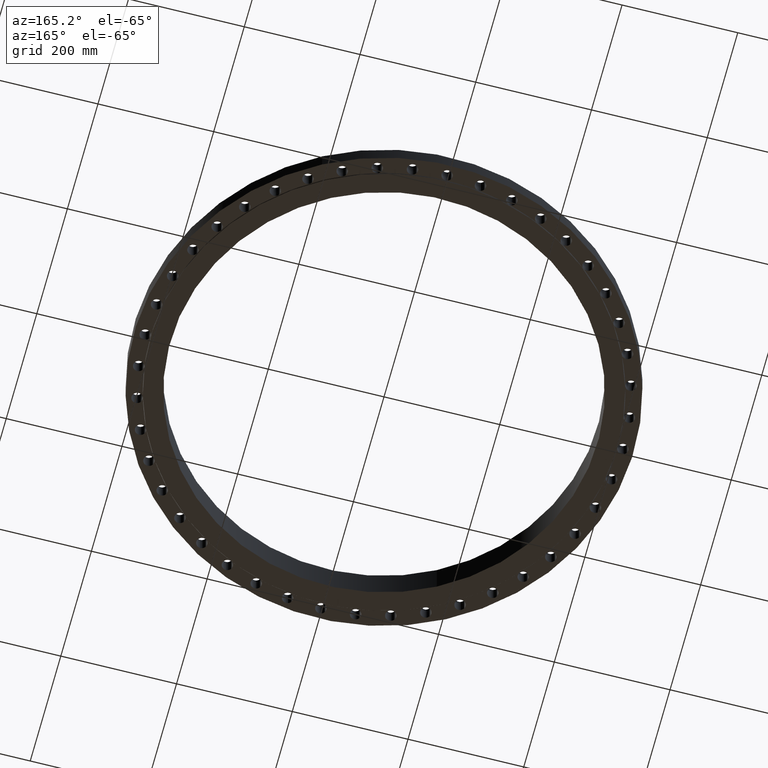
[diagram: clean part render]
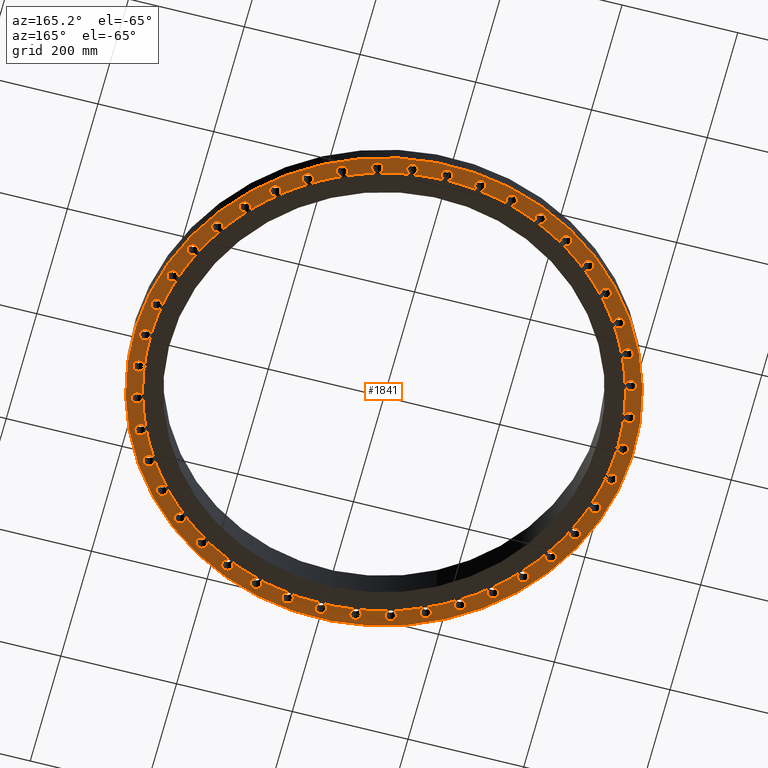
[diagram: same view with one face highlighted and labeled with its STEP entity id]
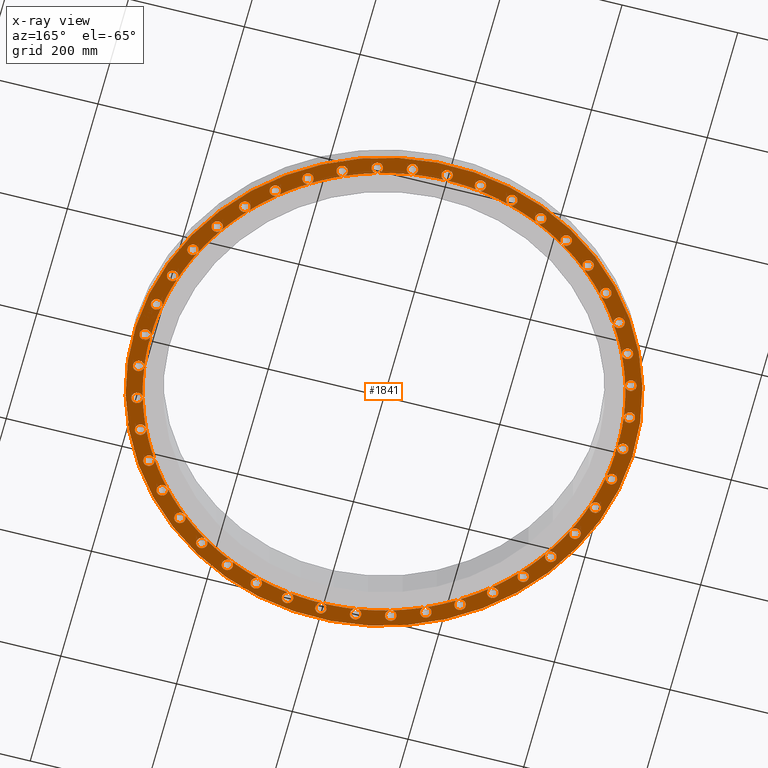
[diagram: x-ray of the same camera — body ghosted, the highlighted face saturated]
A machine part, auxiliary view. The second image highlights one B-rep face of the part: STEP entity #1841.
The next image is the same camera in x-ray: the body ghosted, the highlighted face saturated — about 0% of this face is hidden behind the body in this view.
In plain terms, the highlighted planar face has unit normal (0, 0, -1).
Its self-contained STEP definition (entity closure, byte-faithful):
#51=AXIS2_PLACEMENT_3D('Circle Axis2P3D',#49,#50,$) ;
#77=AXIS2_PLACEMENT_3D('Circle Axis2P3D',#75,#76,$) ;
#84=AXIS2_PLACEMENT_3D('Circle Axis2P3D',#82,#83,$) ;
#107=AXIS2_PLACEMENT_3D('Circle Axis2P3D',#105,#106,$) ;
#142=AXIS2_PLACEMENT_3D('Circle Axis2P3D',#140,#141,$) ;
#456=AXIS2_PLACEMENT_3D('Circle Axis2P3D',#454,#455,$) ;
#463=AXIS2_PLACEMENT_3D('Circle Axis2P3D',#461,#462,$) ;
#470=AXIS2_PLACEMENT_3D('Circle Axis2P3D',#468,#469,$) ;
#477=AXIS2_PLACEMENT_3D('Circle Axis2P3D',#475,#476,$) ;
#484=AXIS2_PLACEMENT_3D('Circle Axis2P3D',#482,#483,$) ;
#491=AXIS2_PLACEMENT_3D('Circle Axis2P3D',#489,#490,$) ;
#498=AXIS2_PLACEMENT_3D('Circle Axis2P3D',#496,#497,$) ;
#505=AXIS2_PLACEMENT_3D('Circle Axis2P3D',#503,#504,$) ;
#510=AXIS2_PLACEMENT_3D('Circle Axis2P3D',#508,#509,$) ;
#517=AXIS2_PLACEMENT_3D('Circle Axis2P3D',#515,#516,$) ;
#524=AXIS2_PLACEMENT_3D('Circle Axis2P3D',#522,#523,$) ;
#531=AXIS2_PLACEMENT_3D('Circle Axis2P3D',#529,#530,$) ;
#538=AXIS2_PLACEMENT_3D('Circle Axis2P3D',#536,#537,$) ;
#545=AXIS2_PLACEMENT_3D('Circle Axis2P3D',#543,#544,$) ;
#552=AXIS2_PLACEMENT_3D('Circle Axis2P3D',#550,#551,$) ;
#559=AXIS2_PLACEMENT_3D('Circle Axis2P3D',#557,#558,$) ;
#566=AXIS2_PLACEMENT_3D('Circle Axis2P3D',#564,#565,$) ;
#573=AXIS2_PLACEMENT_3D('Circle Axis2P3D',#571,#572,$) ;
#580=AXIS2_PLACEMENT_3D('Circle Axis2P3D',#578,#579,$) ;
#587=AXIS2_PLACEMENT_3D('Circle Axis2P3D',#585,#586,$) ;
#594=AXIS2_PLACEMENT_3D('Circle Axis2P3D',#592,#593,$) ;
#601=AXIS2_PLACEMENT_3D('Circle Axis2P3D',#599,#600,$) ;
#608=AXIS2_PLACEMENT_3D('Circle Axis2P3D',#606,#607,$) ;
#649=AXIS2_PLACEMENT_3D('Circle Axis2P3D',#647,#648,$) ;
#656=AXIS2_PLACEMENT_3D('Circle Axis2P3D',#654,#655,$) ;
#663=AXIS2_PLACEMENT_3D('Circle Axis2P3D',#661,#662,$) ;
#670=AXIS2_PLACEMENT_3D('Circle Axis2P3D',#668,#669,$) ;
#677=AXIS2_PLACEMENT_3D('Circle Axis2P3D',#675,#676,$) ;
#684=AXIS2_PLACEMENT_3D('Circle Axis2P3D',#682,#683,$) ;
#691=AXIS2_PLACEMENT_3D('Circle Axis2P3D',#689,#690,$) ;
#698=AXIS2_PLACEMENT_3D('Circle Axis2P3D',#696,#697,$) ;
#705=AXIS2_PLACEMENT_3D('Circle Axis2P3D',#703,#704,$) ;
#712=AXIS2_PLACEMENT_3D('Circle Axis2P3D',#710,#711,$) ;
#719=AXIS2_PLACEMENT_3D('Circle Axis2P3D',#717,#718,$) ;
#726=AXIS2_PLACEMENT_3D('Circle Axis2P3D',#724,#725,$) ;
#733=AXIS2_PLACEMENT_3D('Circle Axis2P3D',#731,#732,$) ;
#740=AXIS2_PLACEMENT_3D('Circle Axis2P3D',#738,#739,$) ;
#747=AXIS2_PLACEMENT_3D('Circle Axis2P3D',#745,#746,$) ;
#754=AXIS2_PLACEMENT_3D('Circle Axis2P3D',#752,#753,$) ;
#761=AXIS2_PLACEMENT_3D('Circle Axis2P3D',#759,#760,$) ;
#768=AXIS2_PLACEMENT_3D('Circle Axis2P3D',#766,#767,$) ;
#775=AXIS2_PLACEMENT_3D('Circle Axis2P3D',#773,#774,$) ;
#782=AXIS2_PLACEMENT_3D('Circle Axis2P3D',#780,#781,$) ;
#789=AXIS2_PLACEMENT_3D('Circle Axis2P3D',#787,#788,$) ;
#796=AXIS2_PLACEMENT_3D('Circle Axis2P3D',#794,#795,$) ;
#803=AXIS2_PLACEMENT_3D('Circle Axis2P3D',#801,#802,$) ;
#838=AXIS2_PLACEMENT_3D('Plane Axis2P3D',#835,#836,#837) ;
#846=AXIS2_PLACEMENT_3D('Circle Axis2P3D',#844,#845,$) ;
#853=AXIS2_PLACEMENT_3D('Circle Axis2P3D',#851,#852,$) ;
#860=AXIS2_PLACEMENT_3D('Circle Axis2P3D',#858,#859,$) ;
#865=AXIS2_PLACEMENT_3D('Circle Axis2P3D',#863,#864,$) ;
#872=AXIS2_PLACEMENT_3D('Circle Axis2P3D',#870,#871,$) ;
#879=AXIS2_PLACEMENT_3D('Circle Axis2P3D',#877,#878,$) ;
#884=AXIS2_PLACEMENT_3D('Circle Axis2P3D',#882,#883,$) ;
#891=AXIS2_PLACEMENT_3D('Circle Axis2P3D',#889,#890,$) ;
#898=AXIS2_PLACEMENT_3D('Circle Axis2P3D',#896,#897,$) ;
#903=AXIS2_PLACEMENT_3D('Circle Axis2P3D',#901,#902,$) ;
#910=AXIS2_PLACEMENT_3D('Circle Axis2P3D',#908,#909,$) ;
#917=AXIS2_PLACEMENT_3D('Circle Axis2P3D',#915,#916,$) ;
#922=AXIS2_PLACEMENT_3D('Circle Axis2P3D',#920,#921,$) ;
#929=AXIS2_PLACEMENT_3D('Circle Axis2P3D',#927,#928,$) ;
#936=AXIS2_PLACEMENT_3D('Circle Axis2P3D',#934,#935,$) ;
#941=AXIS2_PLACEMENT_3D('Circle Axis2P3D',#939,#940,$) ;
#948=AXIS2_PLACEMENT_3D('Circle Axis2P3D',#946,#947,$) ;
#955=AXIS2_PLACEMENT_3D('Circle Axis2P3D',#953,#954,$) ;
#960=AXIS2_PLACEMENT_3D('Circle Axis2P3D',#958,#959,$) ;
#967=AXIS2_PLACEMENT_3D('Circle Axis2P3D',#965,#966,$) ;
#974=AXIS2_PLACEMENT_3D('Circle Axis2P3D',#972,#973,$) ;
#979=AXIS2_PLACEMENT_3D('Circle Axis2P3D',#977,#978,$) ;
#986=AXIS2_PLACEMENT_3D('Circle Axis2P3D',#984,#985,$) ;
#993=AXIS2_PLACEMENT_3D('Circle Axis2P3D',#991,#992,$) ;
#998=AXIS2_PLACEMENT_3D('Circle Axis2P3D',#996,#997,$) ;
#1005=AXIS2_PLACEMENT_3D('Circle Axis2P3D',#1003,#1004,$) ;
#1012=AXIS2_PLACEMENT_3D('Circle Axis2P3D',#1010,#1011,$) ;
#1017=AXIS2_PLACEMENT_3D('Circle Axis2P3D',#1015,#1016,$) ;
#1024=AXIS2_PLACEMENT_3D('Circle Axis2P3D',#1022,#1023,$) ;
#1031=AXIS2_PLACEMENT_3D('Circle Axis2P3D',#1029,#1030,$) ;
#1036=AXIS2_PLACEMENT_3D('Circle Axis2P3D',#1034,#1035,$) ;
#1043=AXIS2_PLACEMENT_3D('Circle Axis2P3D',#1041,#1042,$) ;
#1050=AXIS2_PLACEMENT_3D('Circle Axis2P3D',#1048,#1049,$) ;
#1055=AXIS2_PLACEMENT_3D('Circle Axis2P3D',#1053,#1054,$) ;
#1062=AXIS2_PLACEMENT_3D('Circle Axis2P3D',#1060,#1061,$) ;
#1069=AXIS2_PLACEMENT_3D('Circle Axis2P3D',#1067,#1068,$) ;
#1074=AXIS2_PLACEMENT_3D('Circle Axis2P3D',#1072,#1073,$) ;
#1081=AXIS2_PLACEMENT_3D('Circle Axis2P3D',#1079,#1080,$) ;
#1088=AXIS2_PLACEMENT_3D('Circle Axis2P3D',#1086,#1087,$) ;
#1093=AXIS2_PLACEMENT_3D('Circle Axis2P3D',#1091,#1092,$) ;
#1100=AXIS2_PLACEMENT_3D('Circle Axis2P3D',#1098,#1099,$) ;
#1107=AXIS2_PLACEMENT_3D('Circle Axis2P3D',#1105,#1106,$) ;
#1112=AXIS2_PLACEMENT_3D('Circle Axis2P3D',#1110,#1111,$) ;
#1119=AXIS2_PLACEMENT_3D('Circle Axis2P3D',#1117,#1118,$) ;
#1126=AXIS2_PLACEMENT_3D('Circle Axis2P3D',#1124,#1125,$) ;
#1131=AXIS2_PLACEMENT_3D('Circle Axis2P3D',#1129,#1130,$) ;
#1138=AXIS2_PLACEMENT_3D('Circle Axis2P3D',#1136,#1137,$) ;
#1145=AXIS2_PLACEMENT_3D('Circle Axis2P3D',#1143,#1144,$) ;
#1150=AXIS2_PLACEMENT_3D('Circle Axis2P3D',#1148,#1149,$) ;
#1157=AXIS2_PLACEMENT_3D('Circle Axis2P3D',#1155,#1156,$) ;
#1164=AXIS2_PLACEMENT_3D('Circle Axis2P3D',#1162,#1163,$) ;
#1169=AXIS2_PLACEMENT_3D('Circle Axis2P3D',#1167,#1168,$) ;
#1176=AXIS2_PLACEMENT_3D('Circle Axis2P3D',#1174,#1175,$) ;
#1183=AXIS2_PLACEMENT_3D('Circle Axis2P3D',#1181,#1182,$) ;
#1188=AXIS2_PLACEMENT_3D('Circle Axis2P3D',#1186,#1187,$) ;
#1195=AXIS2_PLACEMENT_3D('Circle Axis2P3D',#1193,#1194,$) ;
#1202=AXIS2_PLACEMENT_3D('Circle Axis2P3D',#1200,#1201,$) ;
#1207=AXIS2_PLACEMENT_3D('Circle Axis2P3D',#1205,#1206,$) ;
#1214=AXIS2_PLACEMENT_3D('Circle Axis2P3D',#1212,#1213,$) ;
#1221=AXIS2_PLACEMENT_3D('Circle Axis2P3D',#1219,#1220,$) ;
#1226=AXIS2_PLACEMENT_3D('Circle Axis2P3D',#1224,#1225,$) ;
#1233=AXIS2_PLACEMENT_3D('Circle Axis2P3D',#1231,#1232,$) ;
#1240=AXIS2_PLACEMENT_3D('Circle Axis2P3D',#1238,#1239,$) ;
#1245=AXIS2_PLACEMENT_3D('Circle Axis2P3D',#1243,#1244,$) ;
#1252=AXIS2_PLACEMENT_3D('Circle Axis2P3D',#1250,#1251,$) ;
#1259=AXIS2_PLACEMENT_3D('Circle Axis2P3D',#1257,#1258,$) ;
#1264=AXIS2_PLACEMENT_3D('Circle Axis2P3D',#1262,#1263,$) ;
#1271=AXIS2_PLACEMENT_3D('Circle Axis2P3D',#1269,#1270,$) ;
#1278=AXIS2_PLACEMENT_3D('Circle Axis2P3D',#1276,#1277,$) ;
#1283=AXIS2_PLACEMENT_3D('Circle Axis2P3D',#1281,#1282,$) ;
#1290=AXIS2_PLACEMENT_3D('Circle Axis2P3D',#1288,#1289,$) ;
#1297=AXIS2_PLACEMENT_3D('Circle Axis2P3D',#1295,#1296,$) ;
#1302=AXIS2_PLACEMENT_3D('Circle Axis2P3D',#1300,#1301,$) ;
#1309=AXIS2_PLACEMENT_3D('Circle Axis2P3D',#1307,#1308,$) ;
#1316=AXIS2_PLACEMENT_3D('Circle Axis2P3D',#1314,#1315,$) ;
#1321=AXIS2_PLACEMENT_3D('Circle Axis2P3D',#1319,#1320,$) ;
#1328=AXIS2_PLACEMENT_3D('Circle Axis2P3D',#1326,#1327,$) ;
#1335=AXIS2_PLACEMENT_3D('Circle Axis2P3D',#1333,#1334,$) ;
#1340=AXIS2_PLACEMENT_3D('Circle Axis2P3D',#1338,#1339,$) ;
#1347=AXIS2_PLACEMENT_3D('Circle Axis2P3D',#1345,#1346,$) ;
#1354=AXIS2_PLACEMENT_3D('Circle Axis2P3D',#1352,#1353,$) ;
#1359=AXIS2_PLACEMENT_3D('Circle Axis2P3D',#1357,#1358,$) ;
#1366=AXIS2_PLACEMENT_3D('Circle Axis2P3D',#1364,#1365,$) ;
#1373=AXIS2_PLACEMENT_3D('Circle Axis2P3D',#1371,#1372,$) ;
#1378=AXIS2_PLACEMENT_3D('Circle Axis2P3D',#1376,#1377,$) ;
#1385=AXIS2_PLACEMENT_3D('Circle Axis2P3D',#1383,#1384,$) ;
#1392=AXIS2_PLACEMENT_3D('Circle Axis2P3D',#1390,#1391,$) ;
#1397=AXIS2_PLACEMENT_3D('Circle Axis2P3D',#1395,#1396,$) ;
#1404=AXIS2_PLACEMENT_3D('Circle Axis2P3D',#1402,#1403,$) ;
#1411=AXIS2_PLACEMENT_3D('Circle Axis2P3D',#1409,#1410,$) ;
#1416=AXIS2_PLACEMENT_3D('Circle Axis2P3D',#1414,#1415,$) ;
#1423=AXIS2_PLACEMENT_3D('Circle Axis2P3D',#1421,#1422,$) ;
#1430=AXIS2_PLACEMENT_3D('Circle Axis2P3D',#1428,#1429,$) ;
#1435=AXIS2_PLACEMENT_3D('Circle Axis2P3D',#1433,#1434,$) ;
#1442=AXIS2_PLACEMENT_3D('Circle Axis2P3D',#1440,#1441,$) ;
#1449=AXIS2_PLACEMENT_3D('Circle Axis2P3D',#1447,#1448,$) ;
#1454=AXIS2_PLACEMENT_3D('Circle Axis2P3D',#1452,#1453,$) ;
#1461=AXIS2_PLACEMENT_3D('Circle Axis2P3D',#1459,#1460,$) ;
#1468=AXIS2_PLACEMENT_3D('Circle Axis2P3D',#1466,#1467,$) ;
#1473=AXIS2_PLACEMENT_3D('Circle Axis2P3D',#1471,#1472,$) ;
#1480=AXIS2_PLACEMENT_3D('Circle Axis2P3D',#1478,#1479,$) ;
#1487=AXIS2_PLACEMENT_3D('Circle Axis2P3D',#1485,#1486,$) ;
#1492=AXIS2_PLACEMENT_3D('Circle Axis2P3D',#1490,#1491,$) ;
#1499=AXIS2_PLACEMENT_3D('Circle Axis2P3D',#1497,#1498,$) ;
#1506=AXIS2_PLACEMENT_3D('Circle Axis2P3D',#1504,#1505,$) ;
#1511=AXIS2_PLACEMENT_3D('Circle Axis2P3D',#1509,#1510,$) ;
#1518=AXIS2_PLACEMENT_3D('Circle Axis2P3D',#1516,#1517,$) ;
#1525=AXIS2_PLACEMENT_3D('Circle Axis2P3D',#1523,#1524,$) ;
#1530=AXIS2_PLACEMENT_3D('Circle Axis2P3D',#1528,#1529,$) ;
#1537=AXIS2_PLACEMENT_3D('Circle Axis2P3D',#1535,#1536,$) ;
#1544=AXIS2_PLACEMENT_3D('Circle Axis2P3D',#1542,#1543,$) ;
#1549=AXIS2_PLACEMENT_3D('Circle Axis2P3D',#1547,#1548,$) ;
#1556=AXIS2_PLACEMENT_3D('Circle Axis2P3D',#1554,#1555,$) ;
#1563=AXIS2_PLACEMENT_3D('Circle Axis2P3D',#1561,#1562,$) ;
#1568=AXIS2_PLACEMENT_3D('Circle Axis2P3D',#1566,#1567,$) ;
#1575=AXIS2_PLACEMENT_3D('Circle Axis2P3D',#1573,#1574,$) ;
#1582=AXIS2_PLACEMENT_3D('Circle Axis2P3D',#1580,#1581,$) ;
#1587=AXIS2_PLACEMENT_3D('Circle Axis2P3D',#1585,#1586,$) ;
#1594=AXIS2_PLACEMENT_3D('Circle Axis2P3D',#1592,#1593,$) ;
#1601=AXIS2_PLACEMENT_3D('Circle Axis2P3D',#1599,#1600,$) ;
#1606=AXIS2_PLACEMENT_3D('Circle Axis2P3D',#1604,#1605,$) ;
#1613=AXIS2_PLACEMENT_3D('Circle Axis2P3D',#1611,#1612,$) ;
#1620=AXIS2_PLACEMENT_3D('Circle Axis2P3D',#1618,#1619,$) ;
#1625=AXIS2_PLACEMENT_3D('Circle Axis2P3D',#1623,#1624,$) ;
#1632=AXIS2_PLACEMENT_3D('Circle Axis2P3D',#1630,#1631,$) ;
#1639=AXIS2_PLACEMENT_3D('Circle Axis2P3D',#1637,#1638,$) ;
#1644=AXIS2_PLACEMENT_3D('Circle Axis2P3D',#1642,#1643,$) ;
#1651=AXIS2_PLACEMENT_3D('Circle Axis2P3D',#1649,#1650,$) ;
#1658=AXIS2_PLACEMENT_3D('Circle Axis2P3D',#1656,#1657,$) ;
#44=CARTESIAN_POINT('Vertex',(15.9209065394,0.179784576977,0.)) ;
#49=CARTESIAN_POINT('Axis2P3D Location',(16.2500000001,0.,0.)) ;
#53=CARTESIAN_POINT('Vertex',(16.5790934608,-0.179784576977,0.)) ;
#75=CARTESIAN_POINT('Axis2P3D Location',(16.2500000001,0.,0.)) ;
#79=CARTESIAN_POINT('Vertex',(15.8750000001,3.88825358731E-015,1.95818864186E-015)) ;
#82=CARTESIAN_POINT('Axis2P3D Location',(16.2500000001,0.,0.)) ;
#105=CARTESIAN_POINT('Axis2P3D Location',(0.,0.,1.95818864186E-015)) ;
#109=CARTESIAN_POINT('Vertex',(-8.1502341563,-14.9189035522,1.95818864186E-015)) ;
#111=CARTESIAN_POINT('Vertex',(8.1502341563,14.9189035522,1.95818864186E-015)) ;
#140=CARTESIAN_POINT('Axis2P3D Location',(0.,0.,1.95818864186E-015)) ;
#451=CARTESIAN_POINT('Vertex',(7.61088042537,13.9316231701,2.23792987641E-015)) ;
#454=CARTESIAN_POINT('Axis2P3D Location',(0.,0.,1.95818864186E-015)) ;
#458=CARTESIAN_POINT('Vertex',(8.58267297714,13.3548998337,0.)) ;
#461=CARTESIAN_POINT('Axis2P3D Location',(0.,0.,1.95818864186E-015)) ;
#465=CARTESIAN_POINT('Vertex',(10.3959141514,11.9975244929,0.)) ;
#468=CARTESIAN_POINT('Axis2P3D Location',(0.,0.,1.95818864186E-015)) ;
#472=CARTESIAN_POINT('Vertex',(11.9975244929,10.3959141514,0.)) ;
#475=CARTESIAN_POINT('Axis2P3D Location',(0.,0.,1.95818864186E-015)) ;
#479=CARTESIAN_POINT('Vertex',(13.3548998337,8.58267297714,0.)) ;
#482=CARTESIAN_POINT('Axis2P3D Location',(0.,0.,1.95818864186E-015)) ;
#486=CARTESIAN_POINT('Vertex',(14.4404079263,6.59471333143,0.)) ;
#489=CARTESIAN_POINT('Axis2P3D Location',(0.,0.,1.95818864186E-015)) ;
#493=CARTESIAN_POINT('Vertex',(15.2319509562,4.47250433988,0.)) ;
#496=CARTESIAN_POINT('Axis2P3D Location',(0.,0.,1.95818864186E-015)) ;
#500=CARTESIAN_POINT('Vertex',(15.7134153899,2.2592480576,0.)) ;
#503=CARTESIAN_POINT('Axis2P3D Location',(0.,0.,1.95818864186E-015)) ;
#508=CARTESIAN_POINT('Axis2P3D Location',(0.,0.,1.95818864186E-015)) ;
#512=CARTESIAN_POINT('Vertex',(15.7134153899,-2.2592480576,0.)) ;
#515=CARTESIAN_POINT('Axis2P3D Location',(0.,0.,1.95818864186E-015)) ;
#519=CARTESIAN_POINT('Vertex',(15.2319509562,-4.47250433988,0.)) ;
#522=CARTESIAN_POINT('Axis2P3D Location',(0.,0.,1.95818864186E-015)) ;
#526=CARTESIAN_POINT('Vertex',(14.4404079263,-6.59471333143,0.)) ;
#529=CARTESIAN_POINT('Axis2P3D Location',(0.,0.,1.95818864186E-015)) ;
#533=CARTESIAN_POINT('Vertex',(13.3548998337,-8.58267297714,0.)) ;
#536=CARTESIAN_POINT('Axis2P3D Location',(0.,0.,1.95818864186E-015)) ;
#540=CARTESIAN_POINT('Vertex',(11.9975244929,-10.3959141514,0.)) ;
#543=CARTESIAN_POINT('Axis2P3D Location',(0.,0.,1.95818864186E-015)) ;
#547=CARTESIAN_POINT('Vertex',(10.3959141514,-11.9975244929,0.)) ;
#550=CARTESIAN_POINT('Axis2P3D Location',(0.,0.,1.95818864186E-015)) ;
#554=CARTESIAN_POINT('Vertex',(8.58267297714,-13.3548998337,0.)) ;
#557=CARTESIAN_POINT('Axis2P3D Location',(0.,0.,1.95818864186E-015)) ;
#561=CARTESIAN_POINT('Vertex',(6.59471333143,-14.4404079263,0.)) ;
#564=CARTESIAN_POINT('Axis2P3D Location',(0.,0.,1.95818864186E-015)) ;
#568=CARTESIAN_POINT('Vertex',(4.47250433988,-15.2319509562,0.)) ;
#571=CARTESIAN_POINT('Axis2P3D Location',(0.,0.,1.95818864186E-015)) ;
#575=CARTESIAN_POINT('Vertex',(2.2592480576,-15.7134153899,0.)) ;
#578=CARTESIAN_POINT('Axis2P3D Location',(0.,0.,1.95818864186E-015)) ;
#582=CARTESIAN_POINT('Vertex',(3.88245855558E-015,-15.8750000001,0.)) ;
#585=CARTESIAN_POINT('Axis2P3D Location',(0.,0.,1.95818864186E-015)) ;
#589=CARTESIAN_POINT('Vertex',(-2.2592480576,-15.7134153899,0.)) ;
#592=CARTESIAN_POINT('Axis2P3D Location',(0.,0.,1.95818864186E-015)) ;
#596=CARTESIAN_POINT('Vertex',(-4.47250433988,-15.2319509562,0.)) ;
#599=CARTESIAN_POINT('Axis2P3D Location',(0.,0.,1.95818864186E-015)) ;
#603=CARTESIAN_POINT('Vertex',(-6.59471333143,-14.4404079263,0.)) ;
#606=CARTESIAN_POINT('Axis2P3D Location',(0.,0.,1.95818864186E-015)) ;
#610=CARTESIAN_POINT('Vertex',(-7.61088042537,-13.9316231701,2.23792987641E-015)) ;
#647=CARTESIAN_POINT('Axis2P3D Location',(0.,0.,1.95818864186E-015)) ;
#651=CARTESIAN_POINT('Vertex',(-8.58267297714,-13.3548998337,0.)) ;
#654=CARTESIAN_POINT('Axis2P3D Location',(0.,0.,1.95818864186E-015)) ;
#658=CARTESIAN_POINT('Vertex',(-10.3959141514,-11.9975244929,0.)) ;
#661=CARTESIAN_POINT('Axis2P3D Location',(0.,0.,1.95818864186E-015)) ;
#665=CARTESIAN_POINT('Vertex',(-11.9975244929,-10.3959141514,0.)) ;
#668=CARTESIAN_POINT('Axis2P3D Location',(0.,0.,1.95818864186E-015)) ;
#672=CARTESIAN_POINT('Vertex',(-13.3548998337,-8.58267297714,0.)) ;
#675=CARTESIAN_POINT('Axis2P3D Location',(0.,0.,1.95818864186E-015)) ;
#679=CARTESIAN_POINT('Vertex',(-14.4404079263,-6.59471333143,0.)) ;
#682=CARTESIAN_POINT('Axis2P3D Location',(0.,0.,1.95818864186E-015)) ;
#686=CARTESIAN_POINT('Vertex',(-15.2319509562,-4.47250433988,0.)) ;
#689=CARTESIAN_POINT('Axis2P3D Location',(0.,0.,1.95818864186E-015)) ;
#693=CARTESIAN_POINT('Vertex',(-15.7134153899,-2.2592480576,0.)) ;
#696=CARTESIAN_POINT('Axis2P3D Location',(0.,0.,1.95818864186E-015)) ;
#700=CARTESIAN_POINT('Vertex',(-15.8750000001,-2.23792987641E-015,0.)) ;
#703=CARTESIAN_POINT('Axis2P3D Location',(0.,0.,1.95818864186E-015)) ;
#707=CARTESIAN_POINT('Vertex',(-15.7134153899,2.2592480576,0.)) ;
#710=CARTESIAN_POINT('Axis2P3D Location',(0.,0.,1.95818864186E-015)) ;
#714=CARTESIAN_POINT('Vertex',(-15.2319509562,4.47250433988,0.)) ;
#717=CARTESIAN_POINT('Axis2P3D Location',(0.,0.,1.95818864186E-015)) ;
#721=CARTESIAN_POINT('Vertex',(-14.4404079263,6.59471333143,0.)) ;
#724=CARTESIAN_POINT('Axis2P3D Location',(0.,0.,1.95818864186E-015)) ;
#728=CARTESIAN_POINT('Vertex',(-13.3548998337,8.58267297714,0.)) ;
#731=CARTESIAN_POINT('Axis2P3D Location',(0.,0.,1.95818864186E-015)) ;
#735=CARTESIAN_POINT('Vertex',(-11.9975244929,10.3959141514,0.)) ;
#738=CARTESIAN_POINT('Axis2P3D Location',(0.,0.,1.95818864186E-015)) ;
#742=CARTESIAN_POINT('Vertex',(-10.3959141514,11.9975244929,0.)) ;
#745=CARTESIAN_POINT('Axis2P3D Location',(0.,0.,1.95818864186E-015)) ;
#749=CARTESIAN_POINT('Vertex',(-8.58267297714,13.3548998337,0.)) ;
#752=CARTESIAN_POINT('Axis2P3D Location',(0.,0.,1.95818864186E-015)) ;
#756=CARTESIAN_POINT('Vertex',(-6.59471333143,14.4404079263,0.)) ;
#759=CARTESIAN_POINT('Axis2P3D Location',(0.,0.,1.95818864186E-015)) ;
#763=CARTESIAN_POINT('Vertex',(-4.47250433988,15.2319509562,0.)) ;
#766=CARTESIAN_POINT('Axis2P3D Location',(0.,0.,1.95818864186E-015)) ;
#770=CARTESIAN_POINT('Vertex',(-2.2592480576,15.7134153899,0.)) ;
#773=CARTESIAN_POINT('Axis2P3D Location',(0.,0.,1.95818864186E-015)) ;
#777=CARTESIAN_POINT('Vertex',(-3.6101187389E-015,15.8750000001,0.)) ;
#780=CARTESIAN_POINT('Axis2P3D Location',(0.,0.,1.95818864186E-015)) ;
#784=CARTESIAN_POINT('Vertex',(2.2592480576,15.7134153899,0.)) ;
#787=CARTESIAN_POINT('Axis2P3D Location',(0.,0.,1.95818864186E-015)) ;
#791=CARTESIAN_POINT('Vertex',(4.47250433988,15.2319509562,0.)) ;
#794=CARTESIAN_POINT('Axis2P3D Location',(0.,0.,1.95818864186E-015)) ;
#798=CARTESIAN_POINT('Vertex',(6.59471333143,14.4404079263,0.)) ;
#801=CARTESIAN_POINT('Axis2P3D Location',(0.,0.,1.95818864186E-015)) ;
#835=CARTESIAN_POINT('Axis2P3D Location',(0.,15.8750000001,0.)) ;
#844=CARTESIAN_POINT('Axis2P3D Location',(15.5917608213,-4.57815404869,0.)) ;
#848=CARTESIAN_POINT('Vertex',(15.856872516,-4.84337242919,-1.1189649382E-015)) ;
#851=CARTESIAN_POINT('Axis2P3D Location',(15.5917608213,-4.57815404869,0.)) ;
#855=CARTESIAN_POINT('Vertex',(15.3266491266,-4.31293566819,0.)) ;
#858=CARTESIAN_POINT('Axis2P3D Location',(15.5917608213,-4.57815404869,0.)) ;
#863=CARTESIAN_POINT('Axis2P3D Location',(16.0845984306,-2.31261612195,0.)) ;
#867=CARTESIAN_POINT('Vertex',(16.3847561814,-2.5374056338,-1.1189649382E-015)) ;
#870=CARTESIAN_POINT('Axis2P3D Location',(16.0845984306,-2.31261612195,0.)) ;
#874=CARTESIAN_POINT('Vertex',(15.7844406798,-2.0878266101,0.)) ;
#877=CARTESIAN_POINT('Axis2P3D Location',(16.0845984306,-2.31261612195,0.)) ;
#882=CARTESIAN_POINT('Axis2P3D Location',(16.0845984306,2.31261612195,0.)) ;
#886=CARTESIAN_POINT('Vertex',(16.4359282074,2.18149637538,0.)) ;
#889=CARTESIAN_POINT('Axis2P3D Location',(16.0845984306,2.31261612195,0.)) ;
#893=CARTESIAN_POINT('Vertex',(15.7332686538,2.44373586852,0.)) ;
#896=CARTESIAN_POINT('Axis2P3D Location',(16.0845984306,2.31261612195,0.)) ;
#901=CARTESIAN_POINT('Axis2P3D Location',(15.5917608213,4.57815404869,0.)) ;
#905=CARTESIAN_POINT('Vertex',(15.9581748531,4.49836835244,0.)) ;
#908=CARTESIAN_POINT('Axis2P3D Location',(15.5917608213,4.57815404869,0.)) ;
#912=CARTESIAN_POINT('Vertex',(15.2253467895,4.65793974494,0.)) ;
#915=CARTESIAN_POINT('Axis2P3D Location',(15.5917608213,4.57815404869,0.)) ;
#920=CARTESIAN_POINT('Axis2P3D Location',(14.7815199246,6.75049396131,0.)) ;
#924=CARTESIAN_POINT('Vertex',(15.1555590783,6.72366652208,0.)) ;
#927=CARTESIAN_POINT('Axis2P3D Location',(14.7815199246,6.75049396131,0.)) ;
#931=CARTESIAN_POINT('Vertex',(14.4074807709,6.77732140054,0.)) ;
#934=CARTESIAN_POINT('Axis2P3D Location',(14.7815199246,6.75049396131,0.)) ;
#939=CARTESIAN_POINT('Axis2P3D Location',(13.6703699086,8.78541328369,0.)) ;
#943=CARTESIAN_POINT('Vertex',(14.0444198257,8.81209023078,0.)) ;
#946=CARTESIAN_POINT('Axis2P3D Location',(13.6703699086,8.78541328369,0.)) ;
#950=CARTESIAN_POINT('Vertex',(13.2963199914,8.7587363366,0.)) ;
#953=CARTESIAN_POINT('Axis2P3D Location',(13.6703699086,8.78541328369,0.)) ;
#958=CARTESIAN_POINT('Axis2P3D Location',(12.2809305833,10.6414869267,0.)) ;
#962=CARTESIAN_POINT('Vertex',(12.6473766862,10.7211251943,0.)) ;
#965=CARTESIAN_POINT('Axis2P3D Location',(12.2809305833,10.6414869267,0.)) ;
#969=CARTESIAN_POINT('Vertex',(11.9144844804,10.561848659,0.)) ;
#972=CARTESIAN_POINT('Axis2P3D Location',(12.2809305833,10.6414869267,0.)) ;
#977=CARTESIAN_POINT('Axis2P3D Location',(10.6414869267,12.2809305833,0.)) ;
#981=CARTESIAN_POINT('Vertex',(10.9928694294,12.4119089661,0.)) ;
#984=CARTESIAN_POINT('Axis2P3D Location',(10.6414869267,12.2809305833,0.)) ;
#988=CARTESIAN_POINT('Vertex',(10.2901044239,12.1499522005,0.)) ;
#991=CARTESIAN_POINT('Axis2P3D Location',(10.6414869267,12.2809305833,0.)) ;
#996=CARTESIAN_POINT('Axis2P3D Location',(8.78541328369,13.6703699086,0.)) ;
#1000=CARTESIAN_POINT('Vertex',(9.11457905184,13.8500220644,0.)) ;
#1003=CARTESIAN_POINT('Axis2P3D Location',(8.78541328369,13.6703699086,0.)) ;
#1007=CARTESIAN_POINT('Vertex',(8.45624751554,13.4907177528,0.)) ;
#1010=CARTESIAN_POINT('Axis2P3D Location',(8.78541328369,13.6703699086,0.)) ;
#1015=CARTESIAN_POINT('Axis2P3D Location',(6.75049396131,14.7815199246,0.)) ;
#1019=CARTESIAN_POINT('Vertex',(7.05074212906,15.0061886535,0.)) ;
#1022=CARTESIAN_POINT('Axis2P3D Location',(6.75049396131,14.7815199246,0.)) ;
#1026=CARTESIAN_POINT('Vertex',(6.45024579356,14.5568511956,0.)) ;
#1029=CARTESIAN_POINT('Axis2P3D Location',(6.75049396131,14.7815199246,0.)) ;
#1034=CARTESIAN_POINT('Axis2P3D Location',(4.57815404869,15.5917608213,0.)) ;
#1038=CARTESIAN_POINT('Vertex',(4.84337242919,15.856872516,0.)) ;
#1041=CARTESIAN_POINT('Axis2P3D Location',(4.57815404869,15.5917608213,0.)) ;
#1045=CARTESIAN_POINT('Vertex',(4.31293566819,15.3266491266,0.)) ;
#1048=CARTESIAN_POINT('Axis2P3D Location',(4.57815404869,15.5917608213,0.)) ;
#1053=CARTESIAN_POINT('Axis2P3D Location',(2.31261612195,16.0845984306,0.)) ;
#1057=CARTESIAN_POINT('Vertex',(2.5374056338,16.3847561814,0.)) ;
#1060=CARTESIAN_POINT('Axis2P3D Location',(2.31261612195,16.0845984306,0.)) ;
#1064=CARTESIAN_POINT('Vertex',(2.0878266101,15.7844406798,0.)) ;
#1067=CARTESIAN_POINT('Axis2P3D Location',(2.31261612195,16.0845984306,0.)) ;
#1072=CARTESIAN_POINT('Axis2P3D Location',(-3.39186246893E-015,16.2500000001,0.)) ;
#1076=CARTESIAN_POINT('Vertex',(0.179784576977,16.5790934608,0.)) ;
#1079=CARTESIAN_POINT('Axis2P3D Location',(-1.99315629618E-015,16.2500000001,0.)) ;
#1083=CARTESIAN_POINT('Vertex',(-0.179784576977,15.9209065394,0.)) ;
#1086=CARTESIAN_POINT('Axis2P3D Location',(-3.39186246893E-015,16.2500000001,0.)) ;
#1091=CARTESIAN_POINT('Axis2P3D Location',(-2.31261612195,16.0845984306,0.)) ;
#1095=CARTESIAN_POINT('Vertex',(-2.18149637538,16.4359282074,0.)) ;
#1098=CARTESIAN_POINT('Axis2P3D Location',(-2.31261612195,16.0845984306,0.)) ;
#1102=CARTESIAN_POINT('Vertex',(-2.44373586852,15.7332686538,0.)) ;
#1105=CARTESIAN_POINT('Axis2P3D Location',(-2.31261612195,16.0845984306,0.)) ;
#1110=CARTESIAN_POINT('Axis2P3D Location',(-4.57815404869,15.5917608213,0.)) ;
#1114=CARTESIAN_POINT('Vertex',(-4.49836835244,15.9581748531,-1.1189649382E-015)) ;
#1117=CARTESIAN_POINT('Axis2P3D Location',(-4.57815404869,15.5917608213,0.)) ;
#1121=CARTESIAN_POINT('Vertex',(-4.65793974494,15.2253467895,0.)) ;
#1124=CARTESIAN_POINT('Axis2P3D Location',(-4.57815404869,15.5917608213,0.)) ;
#1129=CARTESIAN_POINT('Axis2P3D Location',(-6.75049396131,14.7815199246,0.)) ;
#1133=CARTESIAN_POINT('Vertex',(-6.72366652208,15.1555590783,0.)) ;
#1136=CARTESIAN_POINT('Axis2P3D Location',(-6.75049396131,14.7815199246,0.)) ;
#1140=CARTESIAN_POINT('Vertex',(-6.77732140054,14.4074807709,0.)) ;
#1143=CARTESIAN_POINT('Axis2P3D Location',(-6.75049396131,14.7815199246,0.)) ;
#1148=CARTESIAN_POINT('Axis2P3D Location',(-8.78541328369,13.6703699086,0.)) ;
#1152=CARTESIAN_POINT('Vertex',(-8.81209023078,14.0444198257,0.)) ;
#1155=CARTESIAN_POINT('Axis2P3D Location',(-8.78541328369,13.6703699086,0.)) ;
#1159=CARTESIAN_POINT('Vertex',(-8.7587363366,13.2963199914,0.)) ;
#1162=CARTESIAN_POINT('Axis2P3D Location',(-8.78541328369,13.6703699086,0.)) ;
#1167=CARTESIAN_POINT('Axis2P3D Location',(-10.6414869267,12.2809305833,0.)) ;
#1171=CARTESIAN_POINT('Vertex',(-10.7211251943,12.6473766862,0.)) ;
#1174=CARTESIAN_POINT('Axis2P3D Location',(-10.6414869267,12.2809305833,0.)) ;
#1178=CARTESIAN_POINT('Vertex',(-10.561848659,11.9144844804,0.)) ;
#1181=CARTESIAN_POINT('Axis2P3D Location',(-10.6414869267,12.2809305833,0.)) ;
#1186=CARTESIAN_POINT('Axis2P3D Location',(-12.2809305833,10.6414869267,0.)) ;
#1190=CARTESIAN_POINT('Vertex',(-12.4119089661,10.9928694294,0.)) ;
#1193=CARTESIAN_POINT('Axis2P3D Location',(-12.2809305833,10.6414869267,0.)) ;
#1197=CARTESIAN_POINT('Vertex',(-12.1499522005,10.2901044239,0.)) ;
#1200=CARTESIAN_POINT('Axis2P3D Location',(-12.2809305833,10.6414869267,0.)) ;
#1205=CARTESIAN_POINT('Axis2P3D Location',(-13.6703699086,8.78541328369,0.)) ;
#1209=CARTESIAN_POINT('Vertex',(-13.8500220644,9.11457905184,0.)) ;
#1212=CARTESIAN_POINT('Axis2P3D Location',(-13.6703699086,8.78541328369,0.)) ;
#1216=CARTESIAN_POINT('Vertex',(-13.4907177528,8.45624751554,0.)) ;
#1219=CARTESIAN_POINT('Axis2P3D Location',(-13.6703699086,8.78541328369,0.)) ;
#1224=CARTESIAN_POINT('Axis2P3D Location',(-14.7815199246,6.75049396131,0.)) ;
#1228=CARTESIAN_POINT('Vertex',(-15.0061886535,7.05074212906,0.)) ;
#1231=CARTESIAN_POINT('Axis2P3D Location',(-14.7815199246,6.75049396131,0.)) ;
#1235=CARTESIAN_POINT('Vertex',(-14.5568511956,6.45024579356,0.)) ;
#1238=CARTESIAN_POINT('Axis2P3D Location',(-14.7815199246,6.75049396131,0.)) ;
#1243=CARTESIAN_POINT('Axis2P3D Location',(-15.5917608213,4.57815404869,0.)) ;
#1247=CARTESIAN_POINT('Vertex',(-15.856872516,4.84337242919,0.)) ;
#1250=CARTESIAN_POINT('Axis2P3D Location',(-15.5917608213,4.57815404869,0.)) ;
#1254=CARTESIAN_POINT('Vertex',(-15.3266491266,4.31293566819,0.)) ;
#1257=CARTESIAN_POINT('Axis2P3D Location',(-15.5917608213,4.57815404869,0.)) ;
#1262=CARTESIAN_POINT('Axis2P3D Location',(-16.0845984306,2.31261612195,0.)) ;
#1266=CARTESIAN_POINT('Vertex',(-16.3847561814,2.5374056338,0.)) ;
#1269=CARTESIAN_POINT('Axis2P3D Location',(-16.0845984306,2.31261612195,0.)) ;
#1273=CARTESIAN_POINT('Vertex',(-15.7844406798,2.0878266101,0.)) ;
#1276=CARTESIAN_POINT('Axis2P3D Location',(-16.0845984306,2.31261612195,0.)) ;
#1281=CARTESIAN_POINT('Axis2P3D Location',(-16.2500000001,-2.23792987641E-015,0.)) ;
#1285=CARTESIAN_POINT('Vertex',(-16.5790934608,0.179784576977,0.)) ;
#1288=CARTESIAN_POINT('Axis2P3D Location',(-16.2500000001,-2.23792987641E-015,0.)) ;
#1292=CARTESIAN_POINT('Vertex',(-15.9209065394,-0.179784576977,0.)) ;
#1295=CARTESIAN_POINT('Axis2P3D Location',(-16.2500000001,-2.23792987641E-015,0.)) ;
#1300=CARTESIAN_POINT('Axis2P3D Location',(-16.0845984306,-2.31261612195,0.)) ;
#1304=CARTESIAN_POINT('Vertex',(-16.4359282074,-2.18149637538,-1.1189649382E-015)) ;
#1307=CARTESIAN_POINT('Axis2P3D Location',(-16.0845984306,-2.31261612195,0.)) ;
#1311=CARTESIAN_POINT('Vertex',(-15.7332686538,-2.44373586852,0.)) ;
#1314=CARTESIAN_POINT('Axis2P3D Location',(-16.0845984306,-2.31261612195,0.)) ;
#1319=CARTESIAN_POINT('Axis2P3D Location',(-15.5917608213,-4.57815404869,0.)) ;
#1323=CARTESIAN_POINT('Vertex',(-15.9581748531,-4.49836835244,0.)) ;
#1326=CARTESIAN_POINT('Axis2P3D Location',(-15.5917608213,-4.57815404869,0.)) ;
#1330=CARTESIAN_POINT('Vertex',(-15.2253467895,-4.65793974494,0.)) ;
#1333=CARTESIAN_POINT('Axis2P3D Location',(-15.5917608213,-4.57815404869,0.)) ;
#1338=CARTESIAN_POINT('Axis2P3D Location',(-14.7815199246,-6.75049396131,0.)) ;
#1342=CARTESIAN_POINT('Vertex',(-15.1555590783,-6.72366652208,0.)) ;
#1345=CARTESIAN_POINT('Axis2P3D Location',(-14.7815199246,-6.75049396131,0.)) ;
#1349=CARTESIAN_POINT('Vertex',(-14.4074807709,-6.77732140054,0.)) ;
#1352=CARTESIAN_POINT('Axis2P3D Location',(-14.7815199246,-6.75049396131,0.)) ;
#1357=CARTESIAN_POINT('Axis2P3D Location',(-13.6703699086,-8.78541328369,0.)) ;
#1361=CARTESIAN_POINT('Vertex',(-14.0444198257,-8.81209023078,0.)) ;
#1364=CARTESIAN_POINT('Axis2P3D Location',(-13.6703699086,-8.78541328369,0.)) ;
#1368=CARTESIAN_POINT('Vertex',(-13.2963199914,-8.7587363366,0.)) ;
#1371=CARTESIAN_POINT('Axis2P3D Location',(-13.6703699086,-8.78541328369,0.)) ;
#1376=CARTESIAN_POINT('Axis2P3D Location',(-12.2809305833,-10.6414869267,0.)) ;
#1380=CARTESIAN_POINT('Vertex',(-12.6473766862,-10.7211251943,0.)) ;
#1383=CARTESIAN_POINT('Axis2P3D Location',(-12.2809305833,-10.6414869267,0.)) ;
#1387=CARTESIAN_POINT('Vertex',(-11.9144844804,-10.561848659,0.)) ;
#1390=CARTESIAN_POINT('Axis2P3D Location',(-12.2809305833,-10.6414869267,0.)) ;
#1395=CARTESIAN_POINT('Axis2P3D Location',(-10.6414869267,-12.2809305833,0.)) ;
#1399=CARTESIAN_POINT('Vertex',(-10.9928694294,-12.4119089661,-1.1189649382E-015)) ;
#1402=CARTESIAN_POINT('Axis2P3D Location',(-10.6414869267,-12.2809305833,0.)) ;
#1406=CARTESIAN_POINT('Vertex',(-10.2901044239,-12.1499522005,0.)) ;
#1409=CARTESIAN_POINT('Axis2P3D Location',(-10.6414869267,-12.2809305833,0.)) ;
#1414=CARTESIAN_POINT('Axis2P3D Location',(-8.78541328369,-13.6703699086,0.)) ;
#1418=CARTESIAN_POINT('Vertex',(-9.11457905184,-13.8500220644,-1.1189649382E-015)) ;
#1421=CARTESIAN_POINT('Axis2P3D Location',(-8.78541328369,-13.6703699086,0.)) ;
#1425=CARTESIAN_POINT('Vertex',(-8.45624751554,-13.4907177528,0.)) ;
#1428=CARTESIAN_POINT('Axis2P3D Location',(-8.78541328369,-13.6703699086,0.)) ;
#1433=CARTESIAN_POINT('Axis2P3D Location',(-6.75049396131,-14.7815199246,0.)) ;
#1437=CARTESIAN_POINT('Vertex',(-7.05074212906,-15.0061886535,0.)) ;
#1440=CARTESIAN_POINT('Axis2P3D Location',(-6.75049396131,-14.7815199246,0.)) ;
#1444=CARTESIAN_POINT('Vertex',(-6.45024579356,-14.5568511956,0.)) ;
#1447=CARTESIAN_POINT('Axis2P3D Location',(-6.75049396131,-14.7815199246,0.)) ;
#1452=CARTESIAN_POINT('Axis2P3D Location',(-4.57815404869,-15.5917608213,0.)) ;
#1456=CARTESIAN_POINT('Vertex',(-4.84337242919,-15.856872516,-1.1189649382E-015)) ;
#1459=CARTESIAN_POINT('Axis2P3D Location',(-4.57815404869,-15.5917608213,0.)) ;
#1463=CARTESIAN_POINT('Vertex',(-4.31293566819,-15.3266491266,0.)) ;
#1466=CARTESIAN_POINT('Axis2P3D Location',(-4.57815404869,-15.5917608213,0.)) ;
#1471=CARTESIAN_POINT('Axis2P3D Location',(-2.31261612195,-16.0845984306,0.)) ;
#1475=CARTESIAN_POINT('Vertex',(-2.5374056338,-16.3847561814,0.)) ;
#1478=CARTESIAN_POINT('Axis2P3D Location',(-2.31261612195,-16.0845984306,0.)) ;
#1482=CARTESIAN_POINT('Vertex',(-2.0878266101,-15.7844406798,0.)) ;
#1485=CARTESIAN_POINT('Axis2P3D Location',(-2.31261612195,-16.0845984306,0.)) ;
#1490=CARTESIAN_POINT('Axis2P3D Location',(3.95134493804E-015,-16.2500000001,0.)) ;
#1494=CARTESIAN_POINT('Vertex',(-0.179784576977,-16.5790934608,0.)) ;
#1497=CARTESIAN_POINT('Axis2P3D Location',(-1.88825333322E-015,-16.2500000001,0.)) ;
#1501=CARTESIAN_POINT('Vertex',(0.179784576977,-15.9209065394,0.)) ;
#1504=CARTESIAN_POINT('Axis2P3D Location',(3.95134493804E-015,-16.2500000001,0.)) ;
#1509=CARTESIAN_POINT('Axis2P3D Location',(2.31261612195,-16.0845984306,0.)) ;
#1513=CARTESIAN_POINT('Vertex',(2.18149637538,-16.4359282074,0.)) ;
#1516=CARTESIAN_POINT('Axis2P3D Location',(2.31261612195,-16.0845984306,0.)) ;
#1520=CARTESIAN_POINT('Vertex',(2.44373586852,-15.7332686538,0.)) ;
#1523=CARTESIAN_POINT('Axis2P3D Location',(2.31261612195,-16.0845984306,0.)) ;
#1528=CARTESIAN_POINT('Axis2P3D Location',(4.57815404869,-15.5917608213,0.)) ;
#1532=CARTESIAN_POINT('Vertex',(4.49836835244,-15.9581748531,-1.1189649382E-015)) ;
#1535=CARTESIAN_POINT('Axis2P3D Location',(4.57815404869,-15.5917608213,0.)) ;
#1539=CARTESIAN_POINT('Vertex',(4.65793974494,-15.2253467895,0.)) ;
#1542=CARTESIAN_POINT('Axis2P3D Location',(4.57815404869,-15.5917608213,0.)) ;
#1547=CARTESIAN_POINT('Axis2P3D Location',(6.75049396131,-14.7815199246,0.)) ;
#1551=CARTESIAN_POINT('Vertex',(6.72366652208,-15.1555590783,0.)) ;
#1554=CARTESIAN_POINT('Axis2P3D Location',(6.75049396131,-14.7815199246,0.)) ;
#1558=CARTESIAN_POINT('Vertex',(6.77732140054,-14.4074807709,0.)) ;
#1561=CARTESIAN_POINT('Axis2P3D Location',(6.75049396131,-14.7815199246,0.)) ;
#1566=CARTESIAN_POINT('Axis2P3D Location',(8.78541328369,-13.6703699086,0.)) ;
#1570=CARTESIAN_POINT('Vertex',(8.81209023078,-14.0444198257,0.)) ;
#1573=CARTESIAN_POINT('Axis2P3D Location',(8.78541328369,-13.6703699086,0.)) ;
#1577=CARTESIAN_POINT('Vertex',(8.7587363366,-13.2963199914,0.)) ;
#1580=CARTESIAN_POINT('Axis2P3D Location',(8.78541328369,-13.6703699086,0.)) ;
#1585=CARTESIAN_POINT('Axis2P3D Location',(10.6414869267,-12.2809305833,0.)) ;
#1589=CARTESIAN_POINT('Vertex',(10.7211251943,-12.6473766862,-1.1189649382E-015)) ;
#1592=CARTESIAN_POINT('Axis2P3D Location',(10.6414869267,-12.2809305833,0.)) ;
#1596=CARTESIAN_POINT('Vertex',(10.561848659,-11.9144844804,0.)) ;
#1599=CARTESIAN_POINT('Axis2P3D Location',(10.6414869267,-12.2809305833,0.)) ;
#1604=CARTESIAN_POINT('Axis2P3D Location',(12.2809305833,-10.6414869267,0.)) ;
#1608=CARTESIAN_POINT('Vertex',(12.4119089661,-10.9928694294,0.)) ;
#1611=CARTESIAN_POINT('Axis2P3D Location',(12.2809305833,-10.6414869267,0.)) ;
#1615=CARTESIAN_POINT('Vertex',(12.1499522005,-10.2901044239,0.)) ;
#1618=CARTESIAN_POINT('Axis2P3D Location',(12.2809305833,-10.6414869267,0.)) ;
#1623=CARTESIAN_POINT('Axis2P3D Location',(13.6703699086,-8.78541328369,0.)) ;
#1627=CARTESIAN_POINT('Vertex',(13.8500220644,-9.11457905184,0.)) ;
#1630=CARTESIAN_POINT('Axis2P3D Location',(13.6703699086,-8.78541328369,0.)) ;
#1634=CARTESIAN_POINT('Vertex',(13.4907177528,-8.45624751554,0.)) ;
#1637=CARTESIAN_POINT('Axis2P3D Location',(13.6703699086,-8.78541328369,0.)) ;
#1642=CARTESIAN_POINT('Axis2P3D Location',(14.7815199246,-6.75049396131,0.)) ;
#1646=CARTESIAN_POINT('Vertex',(15.0061886535,-7.05074212906,0.)) ;
#1649=CARTESIAN_POINT('Axis2P3D Location',(14.7815199246,-6.75049396131,0.)) ;
#1653=CARTESIAN_POINT('Vertex',(14.5568511956,-6.45024579356,0.)) ;
#1656=CARTESIAN_POINT('Axis2P3D Location',(14.7815199246,-6.75049396131,0.)) ;
#50=DIRECTION('Axis2P3D Direction',(0.,-0.,-0.0393700787402)) ;
#76=DIRECTION('Axis2P3D Direction',(0.,-0.,-0.0393700787402)) ;
#83=DIRECTION('Axis2P3D Direction',(0.,-0.,-0.0393700787402)) ;
#106=DIRECTION('Axis2P3D Direction',(0.,0.,-0.0393700787402)) ;
#141=DIRECTION('Axis2P3D Direction',(0.,0.,-0.0393700787402)) ;
#455=DIRECTION('Axis2P3D Direction',(0.,0.,-0.0393700787402)) ;
#462=DIRECTION('Axis2P3D Direction',(0.,0.,-0.0393700787402)) ;
#469=DIRECTION('Axis2P3D Direction',(0.,0.,-0.0393700787402)) ;
#476=DIRECTION('Axis2P3D Direction',(0.,0.,-0.0393700787402)) ;
#483=DIRECTION('Axis2P3D Direction',(0.,0.,-0.0393700787402)) ;
#490=DIRECTION('Axis2P3D Direction',(0.,0.,-0.0393700787402)) ;
#497=DIRECTION('Axis2P3D Direction',(0.,0.,-0.0393700787402)) ;
#504=DIRECTION('Axis2P3D Direction',(0.,0.,-0.0393700787402)) ;
#509=DIRECTION('Axis2P3D Direction',(0.,0.,-0.0393700787402)) ;
#516=DIRECTION('Axis2P3D Direction',(0.,0.,-0.0393700787402)) ;
#523=DIRECTION('Axis2P3D Direction',(0.,0.,-0.0393700787402)) ;
#530=DIRECTION('Axis2P3D Direction',(0.,0.,-0.0393700787402)) ;
#537=DIRECTION('Axis2P3D Direction',(0.,0.,-0.0393700787402)) ;
#544=DIRECTION('Axis2P3D Direction',(0.,0.,-0.0393700787402)) ;
#551=DIRECTION('Axis2P3D Direction',(0.,0.,-0.0393700787402)) ;
#558=DIRECTION('Axis2P3D Direction',(0.,0.,-0.0393700787402)) ;
#565=DIRECTION('Axis2P3D Direction',(0.,0.,-0.0393700787402)) ;
#572=DIRECTION('Axis2P3D Direction',(0.,0.,-0.0393700787402)) ;
#579=DIRECTION('Axis2P3D Direction',(0.,0.,-0.0393700787402)) ;
#586=DIRECTION('Axis2P3D Direction',(0.,0.,-0.0393700787402)) ;
#593=DIRECTION('Axis2P3D Direction',(0.,0.,-0.0393700787402)) ;
#600=DIRECTION('Axis2P3D Direction',(0.,0.,-0.0393700787402)) ;
#607=DIRECTION('Axis2P3D Direction',(0.,0.,-0.0393700787402)) ;
#648=DIRECTION('Axis2P3D Direction',(0.,0.,-0.0393700787402)) ;
#655=DIRECTION('Axis2P3D Direction',(0.,0.,-0.0393700787402)) ;
#662=DIRECTION('Axis2P3D Direction',(0.,0.,-0.0393700787402)) ;
#669=DIRECTION('Axis2P3D Direction',(0.,0.,-0.0393700787402)) ;
#676=DIRECTION('Axis2P3D Direction',(0.,0.,-0.0393700787402)) ;
#683=DIRECTION('Axis2P3D Direction',(0.,0.,-0.0393700787402)) ;
#690=DIRECTION('Axis2P3D Direction',(0.,0.,-0.0393700787402)) ;
#697=DIRECTION('Axis2P3D Direction',(0.,0.,-0.0393700787402)) ;
#704=DIRECTION('Axis2P3D Direction',(0.,0.,-0.0393700787402)) ;
#711=DIRECTION('Axis2P3D Direction',(0.,0.,-0.0393700787402)) ;
#718=DIRECTION('Axis2P3D Direction',(0.,0.,-0.0393700787402)) ;
#725=DIRECTION('Axis2P3D Direction',(0.,0.,-0.0393700787402)) ;
#732=DIRECTION('Axis2P3D Direction',(0.,0.,-0.0393700787402)) ;
#739=DIRECTION('Axis2P3D Direction',(0.,0.,-0.0393700787402)) ;
#746=DIRECTION('Axis2P3D Direction',(0.,0.,-0.0393700787402)) ;
#753=DIRECTION('Axis2P3D Direction',(0.,0.,-0.0393700787402)) ;
#760=DIRECTION('Axis2P3D Direction',(0.,0.,-0.0393700787402)) ;
#767=DIRECTION('Axis2P3D Direction',(0.,0.,-0.0393700787402)) ;
#774=DIRECTION('Axis2P3D Direction',(0.,0.,-0.0393700787402)) ;
#781=DIRECTION('Axis2P3D Direction',(0.,0.,-0.0393700787402)) ;
#788=DIRECTION('Axis2P3D Direction',(0.,0.,-0.0393700787402)) ;
#795=DIRECTION('Axis2P3D Direction',(0.,0.,-0.0393700787402)) ;
#802=DIRECTION('Axis2P3D Direction',(0.,0.,-0.0393700787402)) ;
#836=DIRECTION('Axis2P3D Direction',(0.,0.,-0.0393700787402)) ;
#837=DIRECTION('Axis2P3D XDirection',(0.0393700787402,0.,0.)) ;
#845=DIRECTION('Axis2P3D Direction',(0.,0.,-0.0393700787402)) ;
#852=DIRECTION('Axis2P3D Direction',(0.,0.,-0.0393700787402)) ;
#859=DIRECTION('Axis2P3D Direction',(0.,0.,-0.0393700787402)) ;
#864=DIRECTION('Axis2P3D Direction',(0.,0.,-0.0393700787402)) ;
#871=DIRECTION('Axis2P3D Direction',(0.,0.,-0.0393700787402)) ;
#878=DIRECTION('Axis2P3D Direction',(0.,0.,-0.0393700787402)) ;
#883=DIRECTION('Axis2P3D Direction',(0.,0.,-0.0393700787402)) ;
#890=DIRECTION('Axis2P3D Direction',(0.,0.,-0.0393700787402)) ;
#897=DIRECTION('Axis2P3D Direction',(0.,0.,-0.0393700787402)) ;
#902=DIRECTION('Axis2P3D Direction',(0.,0.,-0.0393700787402)) ;
#909=DIRECTION('Axis2P3D Direction',(0.,0.,-0.0393700787402)) ;
#916=DIRECTION('Axis2P3D Direction',(0.,0.,-0.0393700787402)) ;
#921=DIRECTION('Axis2P3D Direction',(0.,0.,-0.0393700787402)) ;
#928=DIRECTION('Axis2P3D Direction',(0.,0.,-0.0393700787402)) ;
#935=DIRECTION('Axis2P3D Direction',(0.,0.,-0.0393700787402)) ;
#940=DIRECTION('Axis2P3D Direction',(0.,0.,-0.0393700787402)) ;
#947=DIRECTION('Axis2P3D Direction',(0.,0.,-0.0393700787402)) ;
#954=DIRECTION('Axis2P3D Direction',(0.,0.,-0.0393700787402)) ;
#959=DIRECTION('Axis2P3D Direction',(0.,0.,-0.0393700787402)) ;
#966=DIRECTION('Axis2P3D Direction',(0.,0.,-0.0393700787402)) ;
#973=DIRECTION('Axis2P3D Direction',(0.,0.,-0.0393700787402)) ;
#978=DIRECTION('Axis2P3D Direction',(0.,0.,-0.0393700787402)) ;
#985=DIRECTION('Axis2P3D Direction',(0.,0.,-0.0393700787402)) ;
#992=DIRECTION('Axis2P3D Direction',(0.,0.,-0.0393700787402)) ;
#997=DIRECTION('Axis2P3D Direction',(0.,0.,-0.0393700787402)) ;
#1004=DIRECTION('Axis2P3D Direction',(0.,0.,-0.0393700787402)) ;
#1011=DIRECTION('Axis2P3D Direction',(0.,0.,-0.0393700787402)) ;
#1016=DIRECTION('Axis2P3D Direction',(0.,0.,-0.0393700787402)) ;
#1023=DIRECTION('Axis2P3D Direction',(0.,0.,-0.0393700787402)) ;
#1030=DIRECTION('Axis2P3D Direction',(0.,0.,-0.0393700787402)) ;
#1035=DIRECTION('Axis2P3D Direction',(0.,0.,-0.0393700787402)) ;
#1042=DIRECTION('Axis2P3D Direction',(0.,0.,-0.0393700787402)) ;
#1049=DIRECTION('Axis2P3D Direction',(0.,0.,-0.0393700787402)) ;
#1054=DIRECTION('Axis2P3D Direction',(0.,0.,-0.0393700787402)) ;
#1061=DIRECTION('Axis2P3D Direction',(0.,0.,-0.0393700787402)) ;
#1068=DIRECTION('Axis2P3D Direction',(0.,0.,-0.0393700787402)) ;
#1073=DIRECTION('Axis2P3D Direction',(0.,0.,-0.0393700787402)) ;
#1080=DIRECTION('Axis2P3D Direction',(0.,0.,-0.0393700787402)) ;
#1087=DIRECTION('Axis2P3D Direction',(0.,0.,-0.0393700787402)) ;
#1092=DIRECTION('Axis2P3D Direction',(0.,0.,-0.0393700787402)) ;
#1099=DIRECTION('Axis2P3D Direction',(0.,0.,-0.0393700787402)) ;
#1106=DIRECTION('Axis2P3D Direction',(0.,0.,-0.0393700787402)) ;
#1111=DIRECTION('Axis2P3D Direction',(0.,0.,-0.0393700787402)) ;
#1118=DIRECTION('Axis2P3D Direction',(0.,0.,-0.0393700787402)) ;
#1125=DIRECTION('Axis2P3D Direction',(0.,0.,-0.0393700787402)) ;
#1130=DIRECTION('Axis2P3D Direction',(0.,0.,-0.0393700787402)) ;
#1137=DIRECTION('Axis2P3D Direction',(0.,0.,-0.0393700787402)) ;
#1144=DIRECTION('Axis2P3D Direction',(0.,0.,-0.0393700787402)) ;
#1149=DIRECTION('Axis2P3D Direction',(0.,0.,-0.0393700787402)) ;
#1156=DIRECTION('Axis2P3D Direction',(0.,0.,-0.0393700787402)) ;
#1163=DIRECTION('Axis2P3D Direction',(0.,0.,-0.0393700787402)) ;
#1168=DIRECTION('Axis2P3D Direction',(0.,0.,-0.0393700787402)) ;
#1175=DIRECTION('Axis2P3D Direction',(0.,0.,-0.0393700787402)) ;
#1182=DIRECTION('Axis2P3D Direction',(0.,0.,-0.0393700787402)) ;
#1187=DIRECTION('Axis2P3D Direction',(0.,0.,-0.0393700787402)) ;
#1194=DIRECTION('Axis2P3D Direction',(0.,0.,-0.0393700787402)) ;
#1201=DIRECTION('Axis2P3D Direction',(0.,0.,-0.0393700787402)) ;
#1206=DIRECTION('Axis2P3D Direction',(0.,0.,-0.0393700787402)) ;
#1213=DIRECTION('Axis2P3D Direction',(0.,0.,-0.0393700787402)) ;
#1220=DIRECTION('Axis2P3D Direction',(0.,0.,-0.0393700787402)) ;
#1225=DIRECTION('Axis2P3D Direction',(0.,0.,-0.0393700787402)) ;
#1232=DIRECTION('Axis2P3D Direction',(0.,0.,-0.0393700787402)) ;
#1239=DIRECTION('Axis2P3D Direction',(0.,0.,-0.0393700787402)) ;
#1244=DIRECTION('Axis2P3D Direction',(0.,0.,-0.0393700787402)) ;
#1251=DIRECTION('Axis2P3D Direction',(0.,0.,-0.0393700787402)) ;
#1258=DIRECTION('Axis2P3D Direction',(0.,0.,-0.0393700787402)) ;
#1263=DIRECTION('Axis2P3D Direction',(0.,0.,-0.0393700787402)) ;
#1270=DIRECTION('Axis2P3D Direction',(0.,0.,-0.0393700787402)) ;
#1277=DIRECTION('Axis2P3D Direction',(0.,0.,-0.0393700787402)) ;
#1282=DIRECTION('Axis2P3D Direction',(0.,0.,-0.0393700787402)) ;
#1289=DIRECTION('Axis2P3D Direction',(0.,0.,-0.0393700787402)) ;
#1296=DIRECTION('Axis2P3D Direction',(0.,0.,-0.0393700787402)) ;
#1301=DIRECTION('Axis2P3D Direction',(0.,0.,-0.0393700787402)) ;
#1308=DIRECTION('Axis2P3D Direction',(0.,0.,-0.0393700787402)) ;
#1315=DIRECTION('Axis2P3D Direction',(0.,0.,-0.0393700787402)) ;
#1320=DIRECTION('Axis2P3D Direction',(0.,0.,-0.0393700787402)) ;
#1327=DIRECTION('Axis2P3D Direction',(0.,0.,-0.0393700787402)) ;
#1334=DIRECTION('Axis2P3D Direction',(0.,0.,-0.0393700787402)) ;
#1339=DIRECTION('Axis2P3D Direction',(0.,0.,-0.0393700787402)) ;
#1346=DIRECTION('Axis2P3D Direction',(0.,0.,-0.0393700787402)) ;
#1353=DIRECTION('Axis2P3D Direction',(0.,0.,-0.0393700787402)) ;
#1358=DIRECTION('Axis2P3D Direction',(0.,0.,-0.0393700787402)) ;
#1365=DIRECTION('Axis2P3D Direction',(0.,0.,-0.0393700787402)) ;
#1372=DIRECTION('Axis2P3D Direction',(0.,0.,-0.0393700787402)) ;
#1377=DIRECTION('Axis2P3D Direction',(0.,0.,-0.0393700787402)) ;
#1384=DIRECTION('Axis2P3D Direction',(0.,0.,-0.0393700787402)) ;
#1391=DIRECTION('Axis2P3D Direction',(0.,0.,-0.0393700787402)) ;
#1396=DIRECTION('Axis2P3D Direction',(0.,0.,-0.0393700787402)) ;
#1403=DIRECTION('Axis2P3D Direction',(0.,0.,-0.0393700787402)) ;
#1410=DIRECTION('Axis2P3D Direction',(0.,0.,-0.0393700787402)) ;
#1415=DIRECTION('Axis2P3D Direction',(0.,0.,-0.0393700787402)) ;
#1422=DIRECTION('Axis2P3D Direction',(0.,0.,-0.0393700787402)) ;
#1429=DIRECTION('Axis2P3D Direction',(0.,0.,-0.0393700787402)) ;
#1434=DIRECTION('Axis2P3D Direction',(0.,0.,-0.0393700787402)) ;
#1441=DIRECTION('Axis2P3D Direction',(0.,0.,-0.0393700787402)) ;
#1448=DIRECTION('Axis2P3D Direction',(0.,0.,-0.0393700787402)) ;
#1453=DIRECTION('Axis2P3D Direction',(0.,0.,-0.0393700787402)) ;
#1460=DIRECTION('Axis2P3D Direction',(0.,0.,-0.0393700787402)) ;
#1467=DIRECTION('Axis2P3D Direction',(0.,0.,-0.0393700787402)) ;
#1472=DIRECTION('Axis2P3D Direction',(0.,0.,-0.0393700787402)) ;
#1479=DIRECTION('Axis2P3D Direction',(0.,0.,-0.0393700787402)) ;
#1486=DIRECTION('Axis2P3D Direction',(0.,0.,-0.0393700787402)) ;
#1491=DIRECTION('Axis2P3D Direction',(0.,0.,-0.0393700787402)) ;
#1498=DIRECTION('Axis2P3D Direction',(0.,0.,-0.0393700787402)) ;
#1505=DIRECTION('Axis2P3D Direction',(0.,0.,-0.0393700787402)) ;
#1510=DIRECTION('Axis2P3D Direction',(0.,0.,-0.0393700787402)) ;
#1517=DIRECTION('Axis2P3D Direction',(0.,0.,-0.0393700787402)) ;
#1524=DIRECTION('Axis2P3D Direction',(0.,0.,-0.0393700787402)) ;
#1529=DIRECTION('Axis2P3D Direction',(0.,0.,-0.0393700787402)) ;
#1536=DIRECTION('Axis2P3D Direction',(0.,0.,-0.0393700787402)) ;
#1543=DIRECTION('Axis2P3D Direction',(0.,0.,-0.0393700787402)) ;
#1548=DIRECTION('Axis2P3D Direction',(0.,0.,-0.0393700787402)) ;
#1555=DIRECTION('Axis2P3D Direction',(0.,0.,-0.0393700787402)) ;
#1562=DIRECTION('Axis2P3D Direction',(0.,0.,-0.0393700787402)) ;
#1567=DIRECTION('Axis2P3D Direction',(0.,0.,-0.0393700787402)) ;
#1574=DIRECTION('Axis2P3D Direction',(0.,0.,-0.0393700787402)) ;
#1581=DIRECTION('Axis2P3D Direction',(0.,0.,-0.0393700787402)) ;
#1586=DIRECTION('Axis2P3D Direction',(0.,0.,-0.0393700787402)) ;
#1593=DIRECTION('Axis2P3D Direction',(0.,0.,-0.0393700787402)) ;
#1600=DIRECTION('Axis2P3D Direction',(0.,0.,-0.0393700787402)) ;
#1605=DIRECTION('Axis2P3D Direction',(0.,0.,-0.0393700787402)) ;
#1612=DIRECTION('Axis2P3D Direction',(0.,0.,-0.0393700787402)) ;
#1619=DIRECTION('Axis2P3D Direction',(0.,0.,-0.0393700787402)) ;
#1624=DIRECTION('Axis2P3D Direction',(0.,0.,-0.0393700787402)) ;
#1631=DIRECTION('Axis2P3D Direction',(0.,0.,-0.0393700787402)) ;
#1638=DIRECTION('Axis2P3D Direction',(0.,0.,-0.0393700787402)) ;
#1643=DIRECTION('Axis2P3D Direction',(0.,0.,-0.0393700787402)) ;
#1650=DIRECTION('Axis2P3D Direction',(0.,0.,-0.0393700787402)) ;
#1657=DIRECTION('Axis2P3D Direction',(0.,0.,-0.0393700787402)) ;
#841=ORIENTED_EDGE('',*,*,#113,.T.) ;
#842=ORIENTED_EDGE('',*,*,#144,.T.) ;
#1662=ORIENTED_EDGE('',*,*,#850,.F.) ;
#1663=ORIENTED_EDGE('',*,*,#857,.F.) ;
#1664=ORIENTED_EDGE('',*,*,#862,.F.) ;
#1665=ORIENTED_EDGE('',*,*,#521,.F.) ;
#1666=ORIENTED_EDGE('',*,*,#869,.F.) ;
#1667=ORIENTED_EDGE('',*,*,#876,.F.) ;
#1668=ORIENTED_EDGE('',*,*,#881,.F.) ;
#1669=ORIENTED_EDGE('',*,*,#514,.F.) ;
#1670=ORIENTED_EDGE('',*,*,#81,.F.) ;
#1671=ORIENTED_EDGE('',*,*,#55,.F.) ;
#1672=ORIENTED_EDGE('',*,*,#86,.F.) ;
#1673=ORIENTED_EDGE('',*,*,#507,.F.) ;
#1674=ORIENTED_EDGE('',*,*,#888,.F.) ;
#1675=ORIENTED_EDGE('',*,*,#895,.F.) ;
#1676=ORIENTED_EDGE('',*,*,#900,.F.) ;
#1677=ORIENTED_EDGE('',*,*,#502,.F.) ;
#1678=ORIENTED_EDGE('',*,*,#907,.F.) ;
#1679=ORIENTED_EDGE('',*,*,#914,.F.) ;
#1680=ORIENTED_EDGE('',*,*,#919,.F.) ;
#1681=ORIENTED_EDGE('',*,*,#495,.F.) ;
#1682=ORIENTED_EDGE('',*,*,#926,.F.) ;
#1683=ORIENTED_EDGE('',*,*,#933,.F.) ;
#1684=ORIENTED_EDGE('',*,*,#938,.F.) ;
#1685=ORIENTED_EDGE('',*,*,#488,.F.) ;
#1686=ORIENTED_EDGE('',*,*,#945,.F.) ;
#1687=ORIENTED_EDGE('',*,*,#952,.F.) ;
#1688=ORIENTED_EDGE('',*,*,#957,.F.) ;
#1689=ORIENTED_EDGE('',*,*,#481,.F.) ;
#1690=ORIENTED_EDGE('',*,*,#964,.F.) ;
#1691=ORIENTED_EDGE('',*,*,#971,.F.) ;
#1692=ORIENTED_EDGE('',*,*,#976,.F.) ;
#1693=ORIENTED_EDGE('',*,*,#474,.F.) ;
#1694=ORIENTED_EDGE('',*,*,#983,.F.) ;
#1695=ORIENTED_EDGE('',*,*,#990,.F.) ;
#1696=ORIENTED_EDGE('',*,*,#995,.F.) ;
#1697=ORIENTED_EDGE('',*,*,#467,.F.) ;
#1698=ORIENTED_EDGE('',*,*,#1002,.F.) ;
#1699=ORIENTED_EDGE('',*,*,#1009,.F.) ;
#1700=ORIENTED_EDGE('',*,*,#1014,.F.) ;
#1701=ORIENTED_EDGE('',*,*,#460,.F.) ;
#1702=ORIENTED_EDGE('',*,*,#805,.F.) ;
#1703=ORIENTED_EDGE('',*,*,#1021,.F.) ;
#1704=ORIENTED_EDGE('',*,*,#1028,.F.) ;
#1705=ORIENTED_EDGE('',*,*,#1033,.F.) ;
#1706=ORIENTED_EDGE('',*,*,#800,.F.) ;
#1707=ORIENTED_EDGE('',*,*,#1040,.F.) ;
#1708=ORIENTED_EDGE('',*,*,#1047,.F.) ;
#1709=ORIENTED_EDGE('',*,*,#1052,.F.) ;
#1710=ORIENTED_EDGE('',*,*,#793,.F.) ;
#1711=ORIENTED_EDGE('',*,*,#1059,.F.) ;
#1712=ORIENTED_EDGE('',*,*,#1066,.F.) ;
#1713=ORIENTED_EDGE('',*,*,#1071,.F.) ;
#1714=ORIENTED_EDGE('',*,*,#786,.F.) ;
#1715=ORIENTED_EDGE('',*,*,#1078,.F.) ;
#1716=ORIENTED_EDGE('',*,*,#1085,.F.) ;
#1717=ORIENTED_EDGE('',*,*,#1090,.F.) ;
#1718=ORIENTED_EDGE('',*,*,#779,.F.) ;
#1719=ORIENTED_EDGE('',*,*,#1097,.F.) ;
#1720=ORIENTED_EDGE('',*,*,#1104,.F.) ;
#1721=ORIENTED_EDGE('',*,*,#1109,.F.) ;
#1722=ORIENTED_EDGE('',*,*,#772,.F.) ;
#1723=ORIENTED_EDGE('',*,*,#1116,.F.) ;
#1724=ORIENTED_EDGE('',*,*,#1123,.F.) ;
#1725=ORIENTED_EDGE('',*,*,#1128,.F.) ;
#1726=ORIENTED_EDGE('',*,*,#765,.F.) ;
#1727=ORIENTED_EDGE('',*,*,#1135,.F.) ;
#1728=ORIENTED_EDGE('',*,*,#1142,.F.) ;
#1729=ORIENTED_EDGE('',*,*,#1147,.F.) ;
#1730=ORIENTED_EDGE('',*,*,#758,.F.) ;
#1731=ORIENTED_EDGE('',*,*,#1154,.F.) ;
#1732=ORIENTED_EDGE('',*,*,#1161,.F.) ;
#1733=ORIENTED_EDGE('',*,*,#1166,.F.) ;
#1734=ORIENTED_EDGE('',*,*,#751,.F.) ;
#1735=ORIENTED_EDGE('',*,*,#1173,.F.) ;
#1736=ORIENTED_EDGE('',*,*,#1180,.F.) ;
#1737=ORIENTED_EDGE('',*,*,#1185,.F.) ;
#1738=ORIENTED_EDGE('',*,*,#744,.F.) ;
#1739=ORIENTED_EDGE('',*,*,#1192,.F.) ;
#1740=ORIENTED_EDGE('',*,*,#1199,.F.) ;
#1741=ORIENTED_EDGE('',*,*,#1204,.F.) ;
#1742=ORIENTED_EDGE('',*,*,#737,.F.) ;
#1743=ORIENTED_EDGE('',*,*,#1211,.F.) ;
#1744=ORIENTED_EDGE('',*,*,#1218,.F.) ;
#1745=ORIENTED_EDGE('',*,*,#1223,.F.) ;
#1746=ORIENTED_EDGE('',*,*,#730,.F.) ;
#1747=ORIENTED_EDGE('',*,*,#1230,.F.) ;
#1748=ORIENTED_EDGE('',*,*,#1237,.F.) ;
#1749=ORIENTED_EDGE('',*,*,#1242,.F.) ;
#1750=ORIENTED_EDGE('',*,*,#723,.F.) ;
#1751=ORIENTED_EDGE('',*,*,#1249,.F.) ;
#1752=ORIENTED_EDGE('',*,*,#1256,.F.) ;
#1753=ORIENTED_EDGE('',*,*,#1261,.F.) ;
#1754=ORIENTED_EDGE('',*,*,#716,.F.) ;
#1755=ORIENTED_EDGE('',*,*,#1268,.F.) ;
#1756=ORIENTED_EDGE('',*,*,#1275,.F.) ;
#1757=ORIENTED_EDGE('',*,*,#1280,.F.) ;
#1758=ORIENTED_EDGE('',*,*,#709,.F.) ;
#1759=ORIENTED_EDGE('',*,*,#1287,.F.) ;
#1760=ORIENTED_EDGE('',*,*,#1294,.F.) ;
#1761=ORIENTED_EDGE('',*,*,#1299,.F.) ;
#1762=ORIENTED_EDGE('',*,*,#702,.F.) ;
#1763=ORIENTED_EDGE('',*,*,#1306,.F.) ;
#1764=ORIENTED_EDGE('',*,*,#1313,.F.) ;
#1765=ORIENTED_EDGE('',*,*,#1318,.F.) ;
#1766=ORIENTED_EDGE('',*,*,#695,.F.) ;
#1767=ORIENTED_EDGE('',*,*,#1325,.F.) ;
#1768=ORIENTED_EDGE('',*,*,#1332,.F.) ;
#1769=ORIENTED_EDGE('',*,*,#1337,.F.) ;
#1770=ORIENTED_EDGE('',*,*,#688,.F.) ;
#1771=ORIENTED_EDGE('',*,*,#1344,.F.) ;
#1772=ORIENTED_EDGE('',*,*,#1351,.F.) ;
#1773=ORIENTED_EDGE('',*,*,#1356,.F.) ;
#1774=ORIENTED_EDGE('',*,*,#681,.F.) ;
#1775=ORIENTED_EDGE('',*,*,#1363,.F.) ;
#1776=ORIENTED_EDGE('',*,*,#1370,.F.) ;
#1777=ORIENTED_EDGE('',*,*,#1375,.F.) ;
#1778=ORIENTED_EDGE('',*,*,#674,.F.) ;
#1779=ORIENTED_EDGE('',*,*,#1382,.F.) ;
#1780=ORIENTED_EDGE('',*,*,#1389,.F.) ;
#1781=ORIENTED_EDGE('',*,*,#1394,.F.) ;
#1782=ORIENTED_EDGE('',*,*,#667,.F.) ;
#1783=ORIENTED_EDGE('',*,*,#1401,.F.) ;
#1784=ORIENTED_EDGE('',*,*,#1408,.F.) ;
#1785=ORIENTED_EDGE('',*,*,#1413,.F.) ;
#1786=ORIENTED_EDGE('',*,*,#660,.F.) ;
#1787=ORIENTED_EDGE('',*,*,#1420,.F.) ;
#1788=ORIENTED_EDGE('',*,*,#1427,.F.) ;
#1789=ORIENTED_EDGE('',*,*,#1432,.F.) ;
#1790=ORIENTED_EDGE('',*,*,#653,.F.) ;
#1791=ORIENTED_EDGE('',*,*,#612,.F.) ;
#1792=ORIENTED_EDGE('',*,*,#1439,.F.) ;
#1793=ORIENTED_EDGE('',*,*,#1446,.F.) ;
#1794=ORIENTED_EDGE('',*,*,#1451,.F.) ;
#1795=ORIENTED_EDGE('',*,*,#605,.F.) ;
#1796=ORIENTED_EDGE('',*,*,#1458,.F.) ;
#1797=ORIENTED_EDGE('',*,*,#1465,.F.) ;
#1798=ORIENTED_EDGE('',*,*,#1470,.F.) ;
#1799=ORIENTED_EDGE('',*,*,#598,.F.) ;
#1800=ORIENTED_EDGE('',*,*,#1477,.F.) ;
#1801=ORIENTED_EDGE('',*,*,#1484,.F.) ;
#1802=ORIENTED_EDGE('',*,*,#1489,.F.) ;
#1803=ORIENTED_EDGE('',*,*,#591,.F.) ;
#1804=ORIENTED_EDGE('',*,*,#1496,.F.) ;
#1805=ORIENTED_EDGE('',*,*,#1503,.F.) ;
#1806=ORIENTED_EDGE('',*,*,#1508,.F.) ;
#1807=ORIENTED_EDGE('',*,*,#584,.F.) ;
#1808=ORIENTED_EDGE('',*,*,#1515,.F.) ;
#1809=ORIENTED_EDGE('',*,*,#1522,.F.) ;
#1810=ORIENTED_EDGE('',*,*,#1527,.F.) ;
#1811=ORIENTED_EDGE('',*,*,#577,.F.) ;
#1812=ORIENTED_EDGE('',*,*,#1534,.F.) ;
#1813=ORIENTED_EDGE('',*,*,#1541,.F.) ;
#1814=ORIENTED_EDGE('',*,*,#1546,.F.) ;
#1815=ORIENTED_EDGE('',*,*,#570,.F.) ;
#1816=ORIENTED_EDGE('',*,*,#1553,.F.) ;
#1817=ORIENTED_EDGE('',*,*,#1560,.F.) ;
#1818=ORIENTED_EDGE('',*,*,#1565,.F.) ;
#1819=ORIENTED_EDGE('',*,*,#563,.F.) ;
#1820=ORIENTED_EDGE('',*,*,#1572,.F.) ;
#1821=ORIENTED_EDGE('',*,*,#1579,.F.) ;
#1822=ORIENTED_EDGE('',*,*,#1584,.F.) ;
#1823=ORIENTED_EDGE('',*,*,#556,.F.) ;
#1824=ORIENTED_EDGE('',*,*,#1591,.F.) ;
#1825=ORIENTED_EDGE('',*,*,#1598,.F.) ;
#1826=ORIENTED_EDGE('',*,*,#1603,.F.) ;
#1827=ORIENTED_EDGE('',*,*,#549,.F.) ;
#1828=ORIENTED_EDGE('',*,*,#1610,.F.) ;
#1829=ORIENTED_EDGE('',*,*,#1617,.F.) ;
#1830=ORIENTED_EDGE('',*,*,#1622,.F.) ;
#1831=ORIENTED_EDGE('',*,*,#542,.F.) ;
#1832=ORIENTED_EDGE('',*,*,#1629,.F.) ;
#1833=ORIENTED_EDGE('',*,*,#1636,.F.) ;
#1834=ORIENTED_EDGE('',*,*,#1641,.F.) ;
#1835=ORIENTED_EDGE('',*,*,#535,.F.) ;
#1836=ORIENTED_EDGE('',*,*,#1648,.F.) ;
#1837=ORIENTED_EDGE('',*,*,#1655,.F.) ;
#1838=ORIENTED_EDGE('',*,*,#1660,.F.) ;
#1839=ORIENTED_EDGE('',*,*,#528,.F.) ;
#1840=FACE_BOUND('',#1661,.T.) ;
#1841=ADVANCED_FACE('PartBody',(#843,#1840),#839,.T.) ;
#52=CIRCLE('generated circle',#51,0.375000000002) ;
#78=CIRCLE('generated circle',#77,0.375000000002) ;
#85=CIRCLE('generated circle',#84,0.375000000002) ;
#108=CIRCLE('generated circle',#107,17.0000000001) ;
#143=CIRCLE('generated circle',#142,17.0000000001) ;
#457=CIRCLE('generated circle',#456,15.8750000001) ;
#464=CIRCLE('generated circle',#463,15.8750000001) ;
#471=CIRCLE('generated circle',#470,15.8750000001) ;
#478=CIRCLE('generated circle',#477,15.8750000001) ;
#485=CIRCLE('generated circle',#484,15.8750000001) ;
#492=CIRCLE('generated circle',#491,15.8750000001) ;
#499=CIRCLE('generated circle',#498,15.8750000001) ;
#506=CIRCLE('generated circle',#505,15.8750000001) ;
#511=CIRCLE('generated circle',#510,15.8750000001) ;
#518=CIRCLE('generated circle',#517,15.8750000001) ;
#525=CIRCLE('generated circle',#524,15.8750000001) ;
#532=CIRCLE('generated circle',#531,15.8750000001) ;
#539=CIRCLE('generated circle',#538,15.8750000001) ;
#546=CIRCLE('generated circle',#545,15.8750000001) ;
#553=CIRCLE('generated circle',#552,15.8750000001) ;
#560=CIRCLE('generated circle',#559,15.8750000001) ;
#567=CIRCLE('generated circle',#566,15.8750000001) ;
#574=CIRCLE('generated circle',#573,15.8750000001) ;
#581=CIRCLE('generated circle',#580,15.8750000001) ;
#588=CIRCLE('generated circle',#587,15.8750000001) ;
#595=CIRCLE('generated circle',#594,15.8750000001) ;
#602=CIRCLE('generated circle',#601,15.8750000001) ;
#609=CIRCLE('generated circle',#608,15.8750000001) ;
#650=CIRCLE('generated circle',#649,15.8750000001) ;
#657=CIRCLE('generated circle',#656,15.8750000001) ;
#664=CIRCLE('generated circle',#663,15.8750000001) ;
#671=CIRCLE('generated circle',#670,15.8750000001) ;
#678=CIRCLE('generated circle',#677,15.8750000001) ;
#685=CIRCLE('generated circle',#684,15.8750000001) ;
#692=CIRCLE('generated circle',#691,15.8750000001) ;
#699=CIRCLE('generated circle',#698,15.8750000001) ;
#706=CIRCLE('generated circle',#705,15.8750000001) ;
#713=CIRCLE('generated circle',#712,15.8750000001) ;
#720=CIRCLE('generated circle',#719,15.8750000001) ;
#727=CIRCLE('generated circle',#726,15.8750000001) ;
#734=CIRCLE('generated circle',#733,15.8750000001) ;
#741=CIRCLE('generated circle',#740,15.8750000001) ;
#748=CIRCLE('generated circle',#747,15.8750000001) ;
#755=CIRCLE('generated circle',#754,15.8750000001) ;
#762=CIRCLE('generated circle',#761,15.8750000001) ;
#769=CIRCLE('generated circle',#768,15.8750000001) ;
#776=CIRCLE('generated circle',#775,15.8750000001) ;
#783=CIRCLE('generated circle',#782,15.8750000001) ;
#790=CIRCLE('generated circle',#789,15.8750000001) ;
#797=CIRCLE('generated circle',#796,15.8750000001) ;
#804=CIRCLE('generated circle',#803,15.8750000001) ;
#847=CIRCLE('generated circle',#846,0.375000000001) ;
#854=CIRCLE('generated circle',#853,0.375000000001) ;
#861=CIRCLE('generated circle',#860,0.375000000001) ;
#866=CIRCLE('generated circle',#865,0.375000000001) ;
#873=CIRCLE('generated circle',#872,0.375000000001) ;
#880=CIRCLE('generated circle',#879,0.375000000001) ;
#885=CIRCLE('generated circle',#884,0.375000000001) ;
#892=CIRCLE('generated circle',#891,0.375000000001) ;
#899=CIRCLE('generated circle',#898,0.375000000001) ;
#904=CIRCLE('generated circle',#903,0.375000000001) ;
#911=CIRCLE('generated circle',#910,0.375000000001) ;
#918=CIRCLE('generated circle',#917,0.375000000001) ;
#923=CIRCLE('generated circle',#922,0.375000000002) ;
#930=CIRCLE('generated circle',#929,0.375000000002) ;
#937=CIRCLE('generated circle',#936,0.375000000002) ;
#942=CIRCLE('generated circle',#941,0.375000000001) ;
#949=CIRCLE('generated circle',#948,0.375000000001) ;
#956=CIRCLE('generated circle',#955,0.375000000001) ;
#961=CIRCLE('generated circle',#960,0.375000000001) ;
#968=CIRCLE('generated circle',#967,0.375000000001) ;
#975=CIRCLE('generated circle',#974,0.375000000001) ;
#980=CIRCLE('generated circle',#979,0.375000000001) ;
#987=CIRCLE('generated circle',#986,0.375000000001) ;
#994=CIRCLE('generated circle',#993,0.375000000001) ;
#999=CIRCLE('generated circle',#998,0.375000000001) ;
#1006=CIRCLE('generated circle',#1005,0.375000000001) ;
#1013=CIRCLE('generated circle',#1012,0.375000000001) ;
#1018=CIRCLE('generated circle',#1017,0.375000000002) ;
#1025=CIRCLE('generated circle',#1024,0.375000000002) ;
#1032=CIRCLE('generated circle',#1031,0.375000000002) ;
#1037=CIRCLE('generated circle',#1036,0.375000000001) ;
#1044=CIRCLE('generated circle',#1043,0.375000000001) ;
#1051=CIRCLE('generated circle',#1050,0.375000000001) ;
#1056=CIRCLE('generated circle',#1055,0.375000000001) ;
#1063=CIRCLE('generated circle',#1062,0.375000000001) ;
#1070=CIRCLE('generated circle',#1069,0.375000000001) ;
#1075=CIRCLE('generated circle',#1074,0.375000000002) ;
#1082=CIRCLE('generated circle',#1081,0.375000000002) ;
#1089=CIRCLE('generated circle',#1088,0.375000000002) ;
#1094=CIRCLE('generated circle',#1093,0.375000000001) ;
#1101=CIRCLE('generated circle',#1100,0.375000000001) ;
#1108=CIRCLE('generated circle',#1107,0.375000000001) ;
#1113=CIRCLE('generated circle',#1112,0.375000000001) ;
#1120=CIRCLE('generated circle',#1119,0.375000000001) ;
#1127=CIRCLE('generated circle',#1126,0.375000000001) ;
#1132=CIRCLE('generated circle',#1131,0.375000000002) ;
#1139=CIRCLE('generated circle',#1138,0.375000000002) ;
#1146=CIRCLE('generated circle',#1145,0.375000000002) ;
#1151=CIRCLE('generated circle',#1150,0.375000000002) ;
#1158=CIRCLE('generated circle',#1157,0.375000000002) ;
#1165=CIRCLE('generated circle',#1164,0.375000000002) ;
#1170=CIRCLE('generated circle',#1169,0.375000000001) ;
#1177=CIRCLE('generated circle',#1176,0.375000000001) ;
#1184=CIRCLE('generated circle',#1183,0.375000000001) ;
#1189=CIRCLE('generated circle',#1188,0.375000000001) ;
#1196=CIRCLE('generated circle',#1195,0.375000000001) ;
#1203=CIRCLE('generated circle',#1202,0.375000000001) ;
#1208=CIRCLE('generated circle',#1207,0.375000000002) ;
#1215=CIRCLE('generated circle',#1214,0.375000000002) ;
#1222=CIRCLE('generated circle',#1221,0.375000000002) ;
#1227=CIRCLE('generated circle',#1226,0.375000000002) ;
#1234=CIRCLE('generated circle',#1233,0.375000000002) ;
#1241=CIRCLE('generated circle',#1240,0.375000000002) ;
#1246=CIRCLE('generated circle',#1245,0.375000000001) ;
#1253=CIRCLE('generated circle',#1252,0.375000000001) ;
#1260=CIRCLE('generated circle',#1259,0.375000000001) ;
#1265=CIRCLE('generated circle',#1264,0.375000000001) ;
#1272=CIRCLE('generated circle',#1271,0.375000000001) ;
#1279=CIRCLE('generated circle',#1278,0.375000000001) ;
#1284=CIRCLE('generated circle',#1283,0.375000000001) ;
#1291=CIRCLE('generated circle',#1290,0.375000000001) ;
#1298=CIRCLE('generated circle',#1297,0.375000000001) ;
#1303=CIRCLE('generated circle',#1302,0.375000000001) ;
#1310=CIRCLE('generated circle',#1309,0.375000000001) ;
#1317=CIRCLE('generated circle',#1316,0.375000000001) ;
#1322=CIRCLE('generated circle',#1321,0.375000000001) ;
#1329=CIRCLE('generated circle',#1328,0.375000000001) ;
#1336=CIRCLE('generated circle',#1335,0.375000000001) ;
#1341=CIRCLE('generated circle',#1340,0.375000000002) ;
#1348=CIRCLE('generated circle',#1347,0.375000000002) ;
#1355=CIRCLE('generated circle',#1354,0.375000000002) ;
#1360=CIRCLE('generated circle',#1359,0.375000000002) ;
#1367=CIRCLE('generated circle',#1366,0.375000000002) ;
#1374=CIRCLE('generated circle',#1373,0.375000000002) ;
#1379=CIRCLE('generated circle',#1378,0.375000000001) ;
#1386=CIRCLE('generated circle',#1385,0.375000000001) ;
#1393=CIRCLE('generated circle',#1392,0.375000000001) ;
#1398=CIRCLE('generated circle',#1397,0.375000000001) ;
#1405=CIRCLE('generated circle',#1404,0.375000000001) ;
#1412=CIRCLE('generated circle',#1411,0.375000000001) ;
#1417=CIRCLE('generated circle',#1416,0.375000000002) ;
#1424=CIRCLE('generated circle',#1423,0.375000000002) ;
#1431=CIRCLE('generated circle',#1430,0.375000000002) ;
#1436=CIRCLE('generated circle',#1435,0.375000000002) ;
#1443=CIRCLE('generated circle',#1442,0.375000000002) ;
#1450=CIRCLE('generated circle',#1449,0.375000000002) ;
#1455=CIRCLE('generated circle',#1454,0.375000000001) ;
#1462=CIRCLE('generated circle',#1461,0.375000000001) ;
#1469=CIRCLE('generated circle',#1468,0.375000000001) ;
#1474=CIRCLE('generated circle',#1473,0.375000000001) ;
#1481=CIRCLE('generated circle',#1480,0.375000000001) ;
#1488=CIRCLE('generated circle',#1487,0.375000000001) ;
#1493=CIRCLE('generated circle',#1492,0.375000000002) ;
#1500=CIRCLE('generated circle',#1499,0.375000000002) ;
#1507=CIRCLE('generated circle',#1506,0.375000000002) ;
#1512=CIRCLE('generated circle',#1511,0.375000000001) ;
#1519=CIRCLE('generated circle',#1518,0.375000000001) ;
#1526=CIRCLE('generated circle',#1525,0.375000000001) ;
#1531=CIRCLE('generated circle',#1530,0.375000000001) ;
#1538=CIRCLE('generated circle',#1537,0.375000000001) ;
#1545=CIRCLE('generated circle',#1544,0.375000000001) ;
#1550=CIRCLE('generated circle',#1549,0.375000000002) ;
#1557=CIRCLE('generated circle',#1556,0.375000000002) ;
#1564=CIRCLE('generated circle',#1563,0.375000000002) ;
#1569=CIRCLE('generated circle',#1568,0.375000000001) ;
#1576=CIRCLE('generated circle',#1575,0.375000000001) ;
#1583=CIRCLE('generated circle',#1582,0.375000000001) ;
#1588=CIRCLE('generated circle',#1587,0.375000000001) ;
#1595=CIRCLE('generated circle',#1594,0.375000000001) ;
#1602=CIRCLE('generated circle',#1601,0.375000000001) ;
#1607=CIRCLE('generated circle',#1606,0.375000000001) ;
#1614=CIRCLE('generated circle',#1613,0.375000000001) ;
#1621=CIRCLE('generated circle',#1620,0.375000000001) ;
#1626=CIRCLE('generated circle',#1625,0.375000000002) ;
#1633=CIRCLE('generated circle',#1632,0.375000000002) ;
#1640=CIRCLE('generated circle',#1639,0.375000000002) ;
#1645=CIRCLE('generated circle',#1644,0.375000000002) ;
#1652=CIRCLE('generated circle',#1651,0.375000000002) ;
#1659=CIRCLE('generated circle',#1658,0.375000000002) ;
#55=EDGE_CURVE('',#45,#54,#52,.T.) ;
#81=EDGE_CURVE('',#54,#80,#78,.T.) ;
#86=EDGE_CURVE('',#80,#45,#85,.T.) ;
#113=EDGE_CURVE('',#110,#112,#108,.T.) ;
#144=EDGE_CURVE('',#112,#110,#143,.T.) ;
#460=EDGE_CURVE('',#452,#459,#457,.T.) ;
#467=EDGE_CURVE('',#459,#466,#464,.T.) ;
#474=EDGE_CURVE('',#466,#473,#471,.T.) ;
#481=EDGE_CURVE('',#473,#480,#478,.T.) ;
#488=EDGE_CURVE('',#480,#487,#485,.T.) ;
#495=EDGE_CURVE('',#487,#494,#492,.T.) ;
#502=EDGE_CURVE('',#494,#501,#499,.T.) ;
#507=EDGE_CURVE('',#501,#80,#506,.T.) ;
#514=EDGE_CURVE('',#80,#513,#511,.T.) ;
#521=EDGE_CURVE('',#513,#520,#518,.T.) ;
#528=EDGE_CURVE('',#520,#527,#525,.T.) ;
#535=EDGE_CURVE('',#527,#534,#532,.T.) ;
#542=EDGE_CURVE('',#534,#541,#539,.T.) ;
#549=EDGE_CURVE('',#541,#548,#546,.T.) ;
#556=EDGE_CURVE('',#548,#555,#553,.T.) ;
#563=EDGE_CURVE('',#555,#562,#560,.T.) ;
#570=EDGE_CURVE('',#562,#569,#567,.T.) ;
#577=EDGE_CURVE('',#569,#576,#574,.T.) ;
#584=EDGE_CURVE('',#576,#583,#581,.T.) ;
#591=EDGE_CURVE('',#583,#590,#588,.T.) ;
#598=EDGE_CURVE('',#590,#597,#595,.T.) ;
#605=EDGE_CURVE('',#597,#604,#602,.T.) ;
#612=EDGE_CURVE('',#604,#611,#609,.T.) ;
#653=EDGE_CURVE('',#611,#652,#650,.T.) ;
#660=EDGE_CURVE('',#652,#659,#657,.T.) ;
#667=EDGE_CURVE('',#659,#666,#664,.T.) ;
#674=EDGE_CURVE('',#666,#673,#671,.T.) ;
#681=EDGE_CURVE('',#673,#680,#678,.T.) ;
#688=EDGE_CURVE('',#680,#687,#685,.T.) ;
#695=EDGE_CURVE('',#687,#694,#692,.T.) ;
#702=EDGE_CURVE('',#694,#701,#699,.T.) ;
#709=EDGE_CURVE('',#701,#708,#706,.T.) ;
#716=EDGE_CURVE('',#708,#715,#713,.T.) ;
#723=EDGE_CURVE('',#715,#722,#720,.T.) ;
#730=EDGE_CURVE('',#722,#729,#727,.T.) ;
#737=EDGE_CURVE('',#729,#736,#734,.T.) ;
#744=EDGE_CURVE('',#736,#743,#741,.T.) ;
#751=EDGE_CURVE('',#743,#750,#748,.T.) ;
#758=EDGE_CURVE('',#750,#757,#755,.T.) ;
#765=EDGE_CURVE('',#757,#764,#762,.T.) ;
#772=EDGE_CURVE('',#764,#771,#769,.T.) ;
#779=EDGE_CURVE('',#771,#778,#776,.T.) ;
#786=EDGE_CURVE('',#778,#785,#783,.T.) ;
#793=EDGE_CURVE('',#785,#792,#790,.T.) ;
#800=EDGE_CURVE('',#792,#799,#797,.T.) ;
#805=EDGE_CURVE('',#799,#452,#804,.T.) ;
#850=EDGE_CURVE('',#849,#520,#847,.T.) ;
#857=EDGE_CURVE('',#856,#849,#854,.T.) ;
#862=EDGE_CURVE('',#520,#856,#861,.T.) ;
#869=EDGE_CURVE('',#868,#513,#866,.T.) ;
#876=EDGE_CURVE('',#875,#868,#873,.T.) ;
#881=EDGE_CURVE('',#513,#875,#880,.T.) ;
#888=EDGE_CURVE('',#887,#501,#885,.T.) ;
#895=EDGE_CURVE('',#894,#887,#892,.T.) ;
#900=EDGE_CURVE('',#501,#894,#899,.T.) ;
#907=EDGE_CURVE('',#906,#494,#904,.T.) ;
#914=EDGE_CURVE('',#913,#906,#911,.T.) ;
#919=EDGE_CURVE('',#494,#913,#918,.T.) ;
#926=EDGE_CURVE('',#925,#487,#923,.T.) ;
#933=EDGE_CURVE('',#932,#925,#930,.T.) ;
#938=EDGE_CURVE('',#487,#932,#937,.T.) ;
#945=EDGE_CURVE('',#944,#480,#942,.T.) ;
#952=EDGE_CURVE('',#951,#944,#949,.T.) ;
#957=EDGE_CURVE('',#480,#951,#956,.T.) ;
#964=EDGE_CURVE('',#963,#473,#961,.T.) ;
#971=EDGE_CURVE('',#970,#963,#968,.T.) ;
#976=EDGE_CURVE('',#473,#970,#975,.T.) ;
#983=EDGE_CURVE('',#982,#466,#980,.T.) ;
#990=EDGE_CURVE('',#989,#982,#987,.T.) ;
#995=EDGE_CURVE('',#466,#989,#994,.T.) ;
#1002=EDGE_CURVE('',#1001,#459,#999,.T.) ;
#1009=EDGE_CURVE('',#1008,#1001,#1006,.T.) ;
#1014=EDGE_CURVE('',#459,#1008,#1013,.T.) ;
#1021=EDGE_CURVE('',#1020,#799,#1018,.T.) ;
#1028=EDGE_CURVE('',#1027,#1020,#1025,.T.) ;
#1033=EDGE_CURVE('',#799,#1027,#1032,.T.) ;
#1040=EDGE_CURVE('',#1039,#792,#1037,.T.) ;
#1047=EDGE_CURVE('',#1046,#1039,#1044,.T.) ;
#1052=EDGE_CURVE('',#792,#1046,#1051,.T.) ;
#1059=EDGE_CURVE('',#1058,#785,#1056,.T.) ;
#1066=EDGE_CURVE('',#1065,#1058,#1063,.T.) ;
#1071=EDGE_CURVE('',#785,#1065,#1070,.T.) ;
#1078=EDGE_CURVE('',#1077,#778,#1075,.T.) ;
#1085=EDGE_CURVE('',#1084,#1077,#1082,.T.) ;
#1090=EDGE_CURVE('',#778,#1084,#1089,.T.) ;
#1097=EDGE_CURVE('',#1096,#771,#1094,.T.) ;
#1104=EDGE_CURVE('',#1103,#1096,#1101,.T.) ;
#1109=EDGE_CURVE('',#771,#1103,#1108,.T.) ;
#1116=EDGE_CURVE('',#1115,#764,#1113,.T.) ;
#1123=EDGE_CURVE('',#1122,#1115,#1120,.T.) ;
#1128=EDGE_CURVE('',#764,#1122,#1127,.T.) ;
#1135=EDGE_CURVE('',#1134,#757,#1132,.T.) ;
#1142=EDGE_CURVE('',#1141,#1134,#1139,.T.) ;
#1147=EDGE_CURVE('',#757,#1141,#1146,.T.) ;
#1154=EDGE_CURVE('',#1153,#750,#1151,.T.) ;
#1161=EDGE_CURVE('',#1160,#1153,#1158,.T.) ;
#1166=EDGE_CURVE('',#750,#1160,#1165,.T.) ;
#1173=EDGE_CURVE('',#1172,#743,#1170,.T.) ;
#1180=EDGE_CURVE('',#1179,#1172,#1177,.T.) ;
#1185=EDGE_CURVE('',#743,#1179,#1184,.T.) ;
#1192=EDGE_CURVE('',#1191,#736,#1189,.T.) ;
#1199=EDGE_CURVE('',#1198,#1191,#1196,.T.) ;
#1204=EDGE_CURVE('',#736,#1198,#1203,.T.) ;
#1211=EDGE_CURVE('',#1210,#729,#1208,.T.) ;
#1218=EDGE_CURVE('',#1217,#1210,#1215,.T.) ;
#1223=EDGE_CURVE('',#729,#1217,#1222,.T.) ;
#1230=EDGE_CURVE('',#1229,#722,#1227,.T.) ;
#1237=EDGE_CURVE('',#1236,#1229,#1234,.T.) ;
#1242=EDGE_CURVE('',#722,#1236,#1241,.T.) ;
#1249=EDGE_CURVE('',#1248,#715,#1246,.T.) ;
#1256=EDGE_CURVE('',#1255,#1248,#1253,.T.) ;
#1261=EDGE_CURVE('',#715,#1255,#1260,.T.) ;
#1268=EDGE_CURVE('',#1267,#708,#1265,.T.) ;
#1275=EDGE_CURVE('',#1274,#1267,#1272,.T.) ;
#1280=EDGE_CURVE('',#708,#1274,#1279,.T.) ;
#1287=EDGE_CURVE('',#1286,#701,#1284,.T.) ;
#1294=EDGE_CURVE('',#1293,#1286,#1291,.T.) ;
#1299=EDGE_CURVE('',#701,#1293,#1298,.T.) ;
#1306=EDGE_CURVE('',#1305,#694,#1303,.T.) ;
#1313=EDGE_CURVE('',#1312,#1305,#1310,.T.) ;
#1318=EDGE_CURVE('',#694,#1312,#1317,.T.) ;
#1325=EDGE_CURVE('',#1324,#687,#1322,.T.) ;
#1332=EDGE_CURVE('',#1331,#1324,#1329,.T.) ;
#1337=EDGE_CURVE('',#687,#1331,#1336,.T.) ;
#1344=EDGE_CURVE('',#1343,#680,#1341,.T.) ;
#1351=EDGE_CURVE('',#1350,#1343,#1348,.T.) ;
#1356=EDGE_CURVE('',#680,#1350,#1355,.T.) ;
#1363=EDGE_CURVE('',#1362,#673,#1360,.T.) ;
#1370=EDGE_CURVE('',#1369,#1362,#1367,.T.) ;
#1375=EDGE_CURVE('',#673,#1369,#1374,.T.) ;
#1382=EDGE_CURVE('',#1381,#666,#1379,.T.) ;
#1389=EDGE_CURVE('',#1388,#1381,#1386,.T.) ;
#1394=EDGE_CURVE('',#666,#1388,#1393,.T.) ;
#1401=EDGE_CURVE('',#1400,#659,#1398,.T.) ;
#1408=EDGE_CURVE('',#1407,#1400,#1405,.T.) ;
#1413=EDGE_CURVE('',#659,#1407,#1412,.T.) ;
#1420=EDGE_CURVE('',#1419,#652,#1417,.T.) ;
#1427=EDGE_CURVE('',#1426,#1419,#1424,.T.) ;
#1432=EDGE_CURVE('',#652,#1426,#1431,.T.) ;
#1439=EDGE_CURVE('',#1438,#604,#1436,.T.) ;
#1446=EDGE_CURVE('',#1445,#1438,#1443,.T.) ;
#1451=EDGE_CURVE('',#604,#1445,#1450,.T.) ;
#1458=EDGE_CURVE('',#1457,#597,#1455,.T.) ;
#1465=EDGE_CURVE('',#1464,#1457,#1462,.T.) ;
#1470=EDGE_CURVE('',#597,#1464,#1469,.T.) ;
#1477=EDGE_CURVE('',#1476,#590,#1474,.T.) ;
#1484=EDGE_CURVE('',#1483,#1476,#1481,.T.) ;
#1489=EDGE_CURVE('',#590,#1483,#1488,.T.) ;
#1496=EDGE_CURVE('',#1495,#583,#1493,.T.) ;
#1503=EDGE_CURVE('',#1502,#1495,#1500,.T.) ;
#1508=EDGE_CURVE('',#583,#1502,#1507,.T.) ;
#1515=EDGE_CURVE('',#1514,#576,#1512,.T.) ;
#1522=EDGE_CURVE('',#1521,#1514,#1519,.T.) ;
#1527=EDGE_CURVE('',#576,#1521,#1526,.T.) ;
#1534=EDGE_CURVE('',#1533,#569,#1531,.T.) ;
#1541=EDGE_CURVE('',#1540,#1533,#1538,.T.) ;
#1546=EDGE_CURVE('',#569,#1540,#1545,.T.) ;
#1553=EDGE_CURVE('',#1552,#562,#1550,.T.) ;
#1560=EDGE_CURVE('',#1559,#1552,#1557,.T.) ;
#1565=EDGE_CURVE('',#562,#1559,#1564,.T.) ;
#1572=EDGE_CURVE('',#1571,#555,#1569,.T.) ;
#1579=EDGE_CURVE('',#1578,#1571,#1576,.T.) ;
#1584=EDGE_CURVE('',#555,#1578,#1583,.T.) ;
#1591=EDGE_CURVE('',#1590,#548,#1588,.T.) ;
#1598=EDGE_CURVE('',#1597,#1590,#1595,.T.) ;
#1603=EDGE_CURVE('',#548,#1597,#1602,.T.) ;
#1610=EDGE_CURVE('',#1609,#541,#1607,.T.) ;
#1617=EDGE_CURVE('',#1616,#1609,#1614,.T.) ;
#1622=EDGE_CURVE('',#541,#1616,#1621,.T.) ;
#1629=EDGE_CURVE('',#1628,#534,#1626,.T.) ;
#1636=EDGE_CURVE('',#1635,#1628,#1633,.T.) ;
#1641=EDGE_CURVE('',#534,#1635,#1640,.T.) ;
#1648=EDGE_CURVE('',#1647,#527,#1645,.T.) ;
#1655=EDGE_CURVE('',#1654,#1647,#1652,.T.) ;
#1660=EDGE_CURVE('',#527,#1654,#1659,.T.) ;
#840=EDGE_LOOP('',(#841,#842)) ;
#1661=EDGE_LOOP('',(#1662,#1663,#1664,#1665,#1666,#1667,#1668,#1669,#1670,#1671,#1672,#1673,#1674,#1675,#1676,#1677,#1678,#1679,#1680,#1681,#1682,#1683,#1684,#1685,#1686,#1687,#1688,#1689,#1690,#1691,#1692,#1693,#1694,#1695,#1696,#1697,#1698,#1699,#1700,#1701,#1702,#1703,#1704,#1705,#1706,#1707,#1708,#1709,#1710,#1711,#1712,#1713,#1714,#1715,#1716,#1717,#1718,#1719,#1720,#1721,#1722,#1723,#1724,#1725,#1726,#1727,#1728,#1729,#1730,#1731,#1732,#1733,#1734,#1735,#1736,#1737,#1738,#1739,#1740,#1741,#1742,#1743,#1744,#1745,#1746,#1747,#1748,#1749,#1750,#1751,#1752,#1753,#1754,#1755,#1756,#1757,#1758,#1759,#1760,#1761,#1762,#1763,#1764,#1765,#1766,#1767,#1768,#1769,#1770,#1771,#1772,#1773,#1774,#1775,#1776,#1777,#1778,#1779,#1780,#1781,#1782,#1783,#1784,#1785,#1786,#1787,#1788,#1789,#1790,#1791,#1792,#1793,#1794,#1795,#1796,#1797,#1798,#1799,#1800,#1801,#1802,#1803,#1804,#1805,#1806,#1807,#1808,#1809,#1810,#1811,#1812,#1813,#1814,#1815,#1816,#1817,#1818,#1819,#1820,#1821,#1822,#1823,#1824,#1825,#1826,#1827,#1828,#1829,#1830,#1831,#1832,#1833,#1834,#1835,#1836,#1837,#1838,#1839)) ;
#843=FACE_OUTER_BOUND('',#840,.T.) ;
#839=PLANE('',#838) ;
#45=VERTEX_POINT('',#44) ;
#54=VERTEX_POINT('',#53) ;
#80=VERTEX_POINT('',#79) ;
#110=VERTEX_POINT('',#109) ;
#112=VERTEX_POINT('',#111) ;
#452=VERTEX_POINT('',#451) ;
#459=VERTEX_POINT('',#458) ;
#466=VERTEX_POINT('',#465) ;
#473=VERTEX_POINT('',#472) ;
#480=VERTEX_POINT('',#479) ;
#487=VERTEX_POINT('',#486) ;
#494=VERTEX_POINT('',#493) ;
#501=VERTEX_POINT('',#500) ;
#513=VERTEX_POINT('',#512) ;
#520=VERTEX_POINT('',#519) ;
#527=VERTEX_POINT('',#526) ;
#534=VERTEX_POINT('',#533) ;
#541=VERTEX_POINT('',#540) ;
#548=VERTEX_POINT('',#547) ;
#555=VERTEX_POINT('',#554) ;
#562=VERTEX_POINT('',#561) ;
#569=VERTEX_POINT('',#568) ;
#576=VERTEX_POINT('',#575) ;
#583=VERTEX_POINT('',#582) ;
#590=VERTEX_POINT('',#589) ;
#597=VERTEX_POINT('',#596) ;
#604=VERTEX_POINT('',#603) ;
#611=VERTEX_POINT('',#610) ;
#652=VERTEX_POINT('',#651) ;
#659=VERTEX_POINT('',#658) ;
#666=VERTEX_POINT('',#665) ;
#673=VERTEX_POINT('',#672) ;
#680=VERTEX_POINT('',#679) ;
#687=VERTEX_POINT('',#686) ;
#694=VERTEX_POINT('',#693) ;
#701=VERTEX_POINT('',#700) ;
#708=VERTEX_POINT('',#707) ;
#715=VERTEX_POINT('',#714) ;
#722=VERTEX_POINT('',#721) ;
#729=VERTEX_POINT('',#728) ;
#736=VERTEX_POINT('',#735) ;
#743=VERTEX_POINT('',#742) ;
#750=VERTEX_POINT('',#749) ;
#757=VERTEX_POINT('',#756) ;
#764=VERTEX_POINT('',#763) ;
#771=VERTEX_POINT('',#770) ;
#778=VERTEX_POINT('',#777) ;
#785=VERTEX_POINT('',#784) ;
#792=VERTEX_POINT('',#791) ;
#799=VERTEX_POINT('',#798) ;
#849=VERTEX_POINT('',#848) ;
#856=VERTEX_POINT('',#855) ;
#868=VERTEX_POINT('',#867) ;
#875=VERTEX_POINT('',#874) ;
#887=VERTEX_POINT('',#886) ;
#894=VERTEX_POINT('',#893) ;
#906=VERTEX_POINT('',#905) ;
#913=VERTEX_POINT('',#912) ;
#925=VERTEX_POINT('',#924) ;
#932=VERTEX_POINT('',#931) ;
#944=VERTEX_POINT('',#943) ;
#951=VERTEX_POINT('',#950) ;
#963=VERTEX_POINT('',#962) ;
#970=VERTEX_POINT('',#969) ;
#982=VERTEX_POINT('',#981) ;
#989=VERTEX_POINT('',#988) ;
#1001=VERTEX_POINT('',#1000) ;
#1008=VERTEX_POINT('',#1007) ;
#1020=VERTEX_POINT('',#1019) ;
#1027=VERTEX_POINT('',#1026) ;
#1039=VERTEX_POINT('',#1038) ;
#1046=VERTEX_POINT('',#1045) ;
#1058=VERTEX_POINT('',#1057) ;
#1065=VERTEX_POINT('',#1064) ;
#1077=VERTEX_POINT('',#1076) ;
#1084=VERTEX_POINT('',#1083) ;
#1096=VERTEX_POINT('',#1095) ;
#1103=VERTEX_POINT('',#1102) ;
#1115=VERTEX_POINT('',#1114) ;
#1122=VERTEX_POINT('',#1121) ;
#1134=VERTEX_POINT('',#1133) ;
#1141=VERTEX_POINT('',#1140) ;
#1153=VERTEX_POINT('',#1152) ;
#1160=VERTEX_POINT('',#1159) ;
#1172=VERTEX_POINT('',#1171) ;
#1179=VERTEX_POINT('',#1178) ;
#1191=VERTEX_POINT('',#1190) ;
#1198=VERTEX_POINT('',#1197) ;
#1210=VERTEX_POINT('',#1209) ;
#1217=VERTEX_POINT('',#1216) ;
#1229=VERTEX_POINT('',#1228) ;
#1236=VERTEX_POINT('',#1235) ;
#1248=VERTEX_POINT('',#1247) ;
#1255=VERTEX_POINT('',#1254) ;
#1267=VERTEX_POINT('',#1266) ;
#1274=VERTEX_POINT('',#1273) ;
#1286=VERTEX_POINT('',#1285) ;
#1293=VERTEX_POINT('',#1292) ;
#1305=VERTEX_POINT('',#1304) ;
#1312=VERTEX_POINT('',#1311) ;
#1324=VERTEX_POINT('',#1323) ;
#1331=VERTEX_POINT('',#1330) ;
#1343=VERTEX_POINT('',#1342) ;
#1350=VERTEX_POINT('',#1349) ;
#1362=VERTEX_POINT('',#1361) ;
#1369=VERTEX_POINT('',#1368) ;
#1381=VERTEX_POINT('',#1380) ;
#1388=VERTEX_POINT('',#1387) ;
#1400=VERTEX_POINT('',#1399) ;
#1407=VERTEX_POINT('',#1406) ;
#1419=VERTEX_POINT('',#1418) ;
#1426=VERTEX_POINT('',#1425) ;
#1438=VERTEX_POINT('',#1437) ;
#1445=VERTEX_POINT('',#1444) ;
#1457=VERTEX_POINT('',#1456) ;
#1464=VERTEX_POINT('',#1463) ;
#1476=VERTEX_POINT('',#1475) ;
#1483=VERTEX_POINT('',#1482) ;
#1495=VERTEX_POINT('',#1494) ;
#1502=VERTEX_POINT('',#1501) ;
#1514=VERTEX_POINT('',#1513) ;
#1521=VERTEX_POINT('',#1520) ;
#1533=VERTEX_POINT('',#1532) ;
#1540=VERTEX_POINT('',#1539) ;
#1552=VERTEX_POINT('',#1551) ;
#1559=VERTEX_POINT('',#1558) ;
#1571=VERTEX_POINT('',#1570) ;
#1578=VERTEX_POINT('',#1577) ;
#1590=VERTEX_POINT('',#1589) ;
#1597=VERTEX_POINT('',#1596) ;
#1609=VERTEX_POINT('',#1608) ;
#1616=VERTEX_POINT('',#1615) ;
#1628=VERTEX_POINT('',#1627) ;
#1635=VERTEX_POINT('',#1634) ;
#1647=VERTEX_POINT('',#1646) ;
#1654=VERTEX_POINT('',#1653) ;